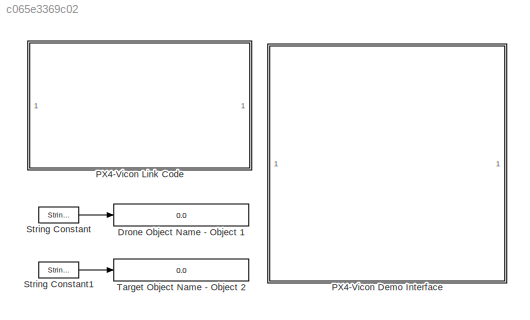
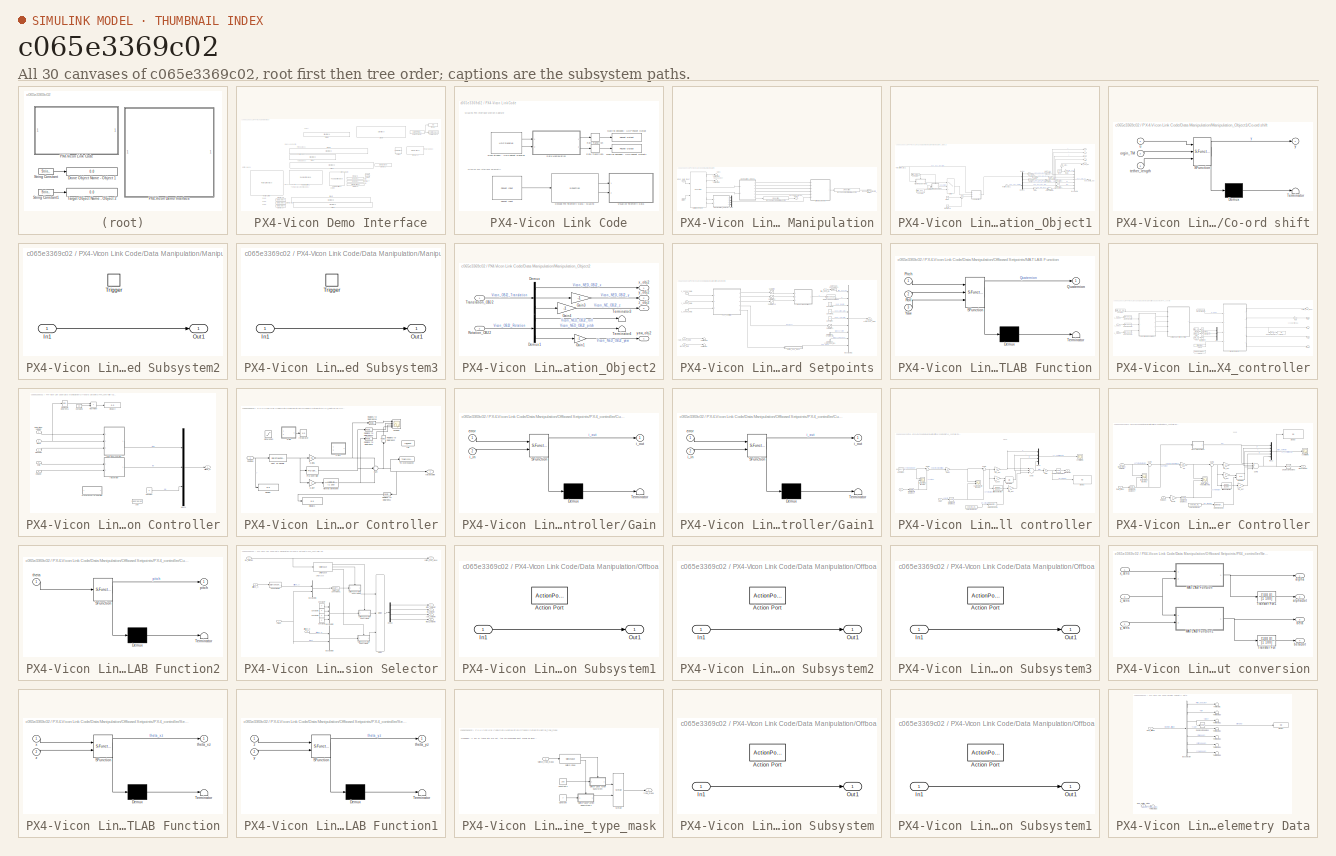
[diagram: thumbnail index - all 30 canvases of the model, root first then tree order]
MODEL slx_c065e3369c02
KIND model
CONFIG AbsTol = auto
CONFIG EnableMultiTasking = off
CONFIG FixedStep = 1/1000
CONFIG InitFcn = x_setpoint_NED = 0;\ny_setpoint_NED = 0;\nz_setpoint_NED = 0;\nvx_setpoint_NED = 0;\nvy_setpoint_NED = 0;\nvz_setpoint_NED = 0;\nafx_setpoint_NED = 0;\nafy_setpoint_NED = 0;\nafz_setpoint_NED = 0;\nyaw_setpoint_NED = 0;\nyawrate_setpoint_NED = 0;\nselected_mission = 1;\npitch_ol = 0;\nroll_ol = 0;\nyaw_ol = 0;\ntheta_xz_setpoint = 0;\nthrustVal = 0;\nparentThruster = 0;\n\nreturn_com = 0;\ntakeoff_com = 0;\nmission_co...<+71ch>
CONFIG MaxStep = auto
CONFIG MinStep = auto
CONFIG PreLoadFcn = x_setpoint_NED = 0;\ny_setpoint_NED = 0;\nz_setpoint_NED = 0;\nvx_setpoint_NED = 0;\nvy_setpoint_NED = 0;\nvz_setpoint_NED = 0;\nafx_setpoint_NED = 0;\nafy_setpoint_NED = 0;\nafz_setpoint_NED = 0;\nyaw_setpoint_NED = 0;\nyawrate_setpoint_NED = 0;\nselected_mission = 1;\npitch_ol = 0;\nroll_ol = 0;\nyaw_ol = 0;\ntheta_xz_setpoint = 0;\nthrustVal = 0;\nparentThruster = 0;\n\nreturn_com = 0;\ntakeoff_com = 0;\nmission_co...<+70ch>
CONFIG RelTol = 1e-3
CONFIG SampleTimeConstraint = Unconstrained
CONFIG Solver = ode1
CONFIG SolverName = ode1
CONFIG StartFcn = yaw_ol = 0;
CONFIG StartTime = 0.0
CONFIG StopTime = inf
BLOCK [Display] Drone Object Name - Object 1
  Decimation = 1
  Ports = [1]
BLOCK [SubSystem] PX4-Vicon Demo Interface
  Ports = []
  RequestExecContextInheritance = off
BLOCK [Display] PX4-Vicon Demo Interface/Display
  Decimation = 1
  Ports = [1]
BLOCK [DisplayBlock] PX4-Vicon Demo Interface/Display1
  Format = short
  LabelPosition = Hide
BLOCK [DisplayBlock] PX4-Vicon Demo Interface/Display10
  Format = short
  LabelPosition = Hide
BLOCK [DisplayBlock] PX4-Vicon Demo Interface/Display35
  Commented = on
  Format = short
  LabelPosition = Hide
BLOCK [DisplayBlock] PX4-Vicon Demo Interface/Display36
  Commented = on
  Format = short
  LabelPosition = Hide
BLOCK [DisplayBlock] PX4-Vicon Demo Interface/Display37
  Commented = on
  Format = short
  LabelPosition = Hide
BLOCK [DisplayBlock] PX4-Vicon Demo Interface/Display6
  Format = short
  LabelPosition = Hide
BLOCK [DisplayBlock] PX4-Vicon Demo Interface/Display7
  Format = short
  LabelPosition = Hide
BLOCK [DisplayBlock] PX4-Vicon Demo Interface/Display8
  Format = short
  LabelPosition = Hide
BLOCK [LampBlock] PX4-Vicon Demo Interface/Lamp5
BLOCK [LampBlock] PX4-Vicon Demo Interface/Lamp6
  LabelPosition = Hide
BLOCK [RadioButtonGroup] PX4-Vicon Demo Interface/Radio Button1
  ButtonGroupName = Select Desired Control
  LabelPosition = Hide
  SelectedLabel = DONT
BLOCK [RotarySwitchBlock] PX4-Vicon Demo Interface/Rotary Switch
  LabelPosition = Hide
BLOCK [SliderBlock] PX4-Vicon Demo Interface/Slider
  LabelPosition = Hide
  ScaleMax = 25
  ScaleMin = -25
BLOCK [SliderBlock] PX4-Vicon Demo Interface/Slider1
  LabelPosition = Hide
  ScaleMax = 180
  ScaleMin = -180
  TickInterval = 10
BLOCK [SliderBlock] PX4-Vicon Demo Interface/Slider2
  LabelPosition = Hide
  ScaleMax = 60
  ScaleMin = -30
BLOCK [SliderBlock] PX4-Vicon Demo Interface/Slider3
  LabelPosition = Hide
  ScaleMax = 60
  ScaleMin = -25
  TickInterval = 5
BLOCK [SliderBlock] PX4-Vicon Demo Interface/Slider4
  LabelPosition = Hide
  ScaleMax = 0.5
  TickInterval = 0.050000000000000003
BLOCK [SliderBlock] PX4-Vicon Demo Interface/Slider5
  ScaleMax = 60
  TickInterval = 5
BLOCK [SliderBlock] PX4-Vicon Demo Interface/Slider6
  LabelPosition = Hide
  ScaleMax = 30
  ScaleMin = -30
BLOCK [ToWorkspace] PX4-Vicon Demo Interface/To Workspace
  FixptAsFi = on
  MaxDataPoints = inf
  Ports = [1]
  SampleTime = -1
  SaveFormat = Timeseries
  VariableName = parentThruster
BLOCK [ToggleSwitchBlock] PX4-Vicon Demo Interface/Toggle Switch1
  LabelPosition = Hide
BLOCK [Constant] PX4-Vicon Demo Interface/parentThruster
  Value = parentThruster
BLOCK [SubSystem] PX4-Vicon Link Code
  Ports = []
  RequestExecContextInheritance = off
BLOCK [SubSystem] PX4-Vicon Link Code/Data Manipulation
  Ports = [2, 2]
  RequestExecContextInheritance = off
BLOCK [S-Function] PX4-Vicon Link Code/Data Manipulation/Encode Mocap Data - MAVLink 
  EnableBusSupport = off
  FunctionName = sfun_encode_msg_vision_position_estimate
  Ports = [1, 1]
  SFcnIsStateOwnerBlock = off
  SFunctionDeploymentMode = off
BLOCK [S-Function] PX4-Vicon Link Code/Data Manipulation/Encode Setpoint Data - MAVLink
  EnableBusSupport = off
  FunctionName = sfun_encode_msg_set_attitude_target
  Ports = [1, 1]
  SFcnIsStateOwnerBlock = off
  SFunctionDeploymentMode = off
BLOCK [Outport] PX4-Vicon Link Code/Data Manipulation/Encoded_Mocap_Output
  IconDisplay = Port number
  Port = 2
BLOCK [Outport] PX4-Vicon Link Code/Data Manipulation/Encoded_Setpoints_Output
  IconDisplay = Port number
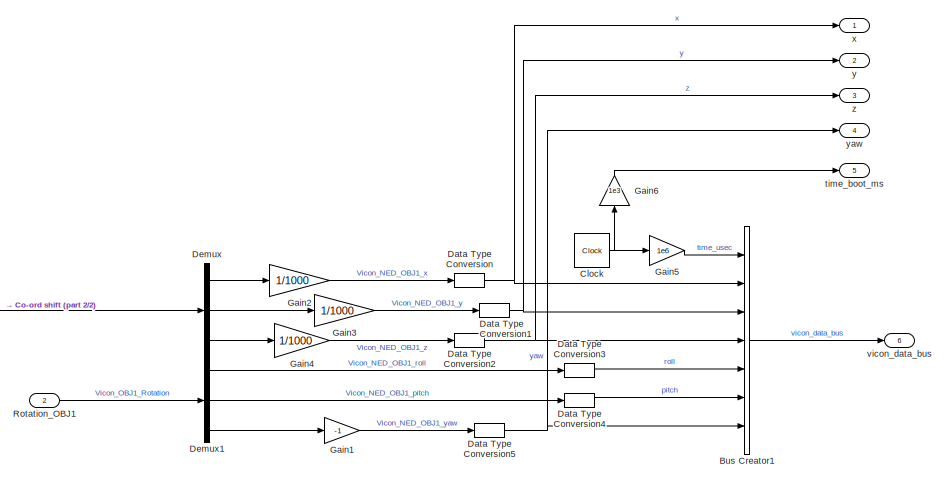
[diagram: PX4-Vicon Link Code/Data Manipulation/Manipulation_Object1 - part 1/2, middle right region]
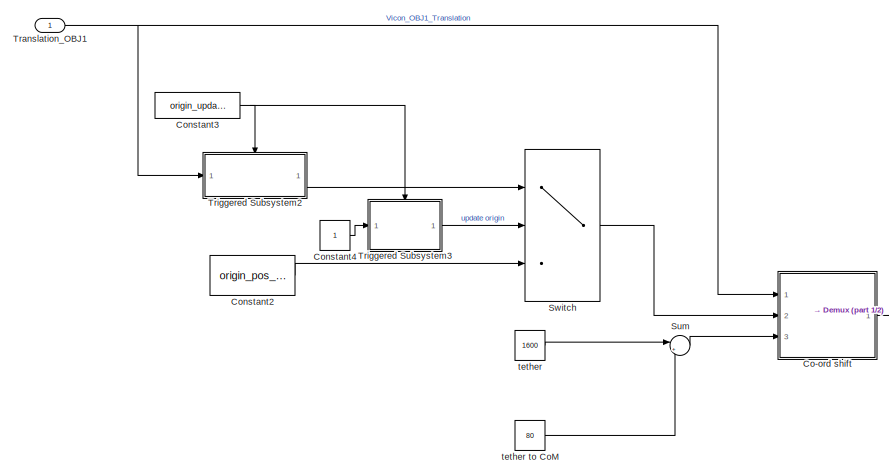
[diagram: PX4-Vicon Link Code/Data Manipulation/Manipulation_Object1 - part 2/2, middle left region]
BLOCK [SubSystem] PX4-Vicon Link Code/Data Manipulation/Manipulation_Object1
  Ports = [2, 6]
  RequestExecContextInheritance = off
BLOCK [BusCreator] PX4-Vicon Link Code/Data Manipulation/Manipulation_Object1/Bus Creator1
  DisplayOption = bar
  InheritFromInputs = on
  Inputs = time_usec,x,y,z,roll,pitch,yaw
  OutDataTypeStr = Bus: mavlink_vision_position_estimate_t
  Ports = [7, 1]
BLOCK [Clock] PX4-Vicon Link Code/Data Manipulation/Manipulation_Object1/Clock
  Decimation = 100
  DisplayTime = on
BLOCK [SubSystem] PX4-Vicon Link Code/Data Manipulation/Manipulation_Object1/Co-ord shift
  ErrorFcn = Stateflow.Translate.translate
  PermitHierarchicalResolution = ExplicitOnly
  Ports = [3, 1]
  RequestExecContextInheritance = off
  SFBlockType = MATLAB Function
  TreatAsAtomicUnit = on
BLOCK [Demux] PX4-Vicon Link Code/Data Manipulation/Manipulation_Object1/Co-ord shift/ Demux 
  Outputs = 1
  Ports = [1, 1]
BLOCK [S-Function] PX4-Vicon Link Code/Data Manipulation/Manipulation_Object1/Co-ord shift/ SFunction 
  EnableBusSupport = on
  FunctionName = sf_sfun
  PortCounts = [3 2]
  Ports = [3, 2]
  SFcnIsStateOwnerBlock = off
  SFunctionDeploymentMode = off
  Tag = Stateflow S-Function attitude_template_link 2
BLOCK [Terminator] PX4-Vicon Link Code/Data Manipulation/Manipulation_Object1/Co-ord shift/ Terminator 
BLOCK [Inport] PX4-Vicon Link Code/Data Manipulation/Manipulation_Object1/Co-ord shift/orgin_TM
  IconDisplay = Port number
  Port = 2
BLOCK [Inport] PX4-Vicon Link Code/Data Manipulation/Manipulation_Object1/Co-ord shift/tether_length
  IconDisplay = Port number
  Port = 3
BLOCK [Inport] PX4-Vicon Link Code/Data Manipulation/Manipulation_Object1/Co-ord shift/u
  IconDisplay = Port number
BLOCK [Outport] PX4-Vicon Link Code/Data Manipulation/Manipulation_Object1/Co-ord shift/y
  IconDisplay = Port number
BLOCK [Constant] PX4-Vicon Link Code/Data Manipulation/Manipulation_Object1/Constant2
  Value = origin_pos_yaw
BLOCK [Constant] PX4-Vicon Link Code/Data Manipulation/Manipulation_Object1/Constant3
  Value = origin_update
BLOCK [Constant] PX4-Vicon Link Code/Data Manipulation/Manipulation_Object1/Constant4
BLOCK [DataTypeConversion] PX4-Vicon Link Code/Data Manipulation/Manipulation_Object1/Data Type Conversion
  OutDataTypeStr = single
  RndMeth = Floor
  SaturateOnIntegerOverflow = off
BLOCK [DataTypeConversion] PX4-Vicon Link Code/Data Manipulation/Manipulation_Object1/Data Type Conversion1
  OutDataTypeStr = single
  RndMeth = Floor
  SaturateOnIntegerOverflow = off
BLOCK [DataTypeConversion] PX4-Vicon Link Code/Data Manipulation/Manipulation_Object1/Data Type Conversion2
  OutDataTypeStr = single
  RndMeth = Floor
  SaturateOnIntegerOverflow = off
BLOCK [DataTypeConversion] PX4-Vicon Link Code/Data Manipulation/Manipulation_Object1/Data Type Conversion3
  OutDataTypeStr = single
  RndMeth = Floor
  SaturateOnIntegerOverflow = off
BLOCK [DataTypeConversion] PX4-Vicon Link Code/Data Manipulation/Manipulation_Object1/Data Type Conversion4
  OutDataTypeStr = single
  RndMeth = Floor
  SaturateOnIntegerOverflow = off
BLOCK [DataTypeConversion] PX4-Vicon Link Code/Data Manipulation/Manipulation_Object1/Data Type Conversion5
  OutDataTypeStr = single
  RndMeth = Floor
  SaturateOnIntegerOverflow = off
BLOCK [Demux] PX4-Vicon Link Code/Data Manipulation/Manipulation_Object1/Demux
  DisplayOption = bar
  Outputs = 3
  Ports = [1, 3]
BLOCK [Demux] PX4-Vicon Link Code/Data Manipulation/Manipulation_Object1/Demux1
  DisplayOption = bar
  Outputs = 3
  Ports = [1, 3]
BLOCK [Gain] PX4-Vicon Link Code/Data Manipulation/Manipulation_Object1/Gain1
  Gain = -1
  ParamDataTypeStr = Inherit: Inherit via internal rule
  SaturateOnIntegerOverflow = off
BLOCK [Gain] PX4-Vicon Link Code/Data Manipulation/Manipulation_Object1/Gain2
  Gain = 1/1000
  OutDataTypeStr = double
  ParamDataTypeStr = Inherit: Inherit via internal rule
  SaturateOnIntegerOverflow = off
BLOCK [Gain] PX4-Vicon Link Code/Data Manipulation/Manipulation_Object1/Gain3
  Gain = 1/1000
  OutDataTypeStr = double
  ParamDataTypeStr = Inherit: Inherit via internal rule
  SaturateOnIntegerOverflow = off
BLOCK [Gain] PX4-Vicon Link Code/Data Manipulation/Manipulation_Object1/Gain4
  Gain = 1/1000
  OutDataTypeStr = double
  ParamDataTypeStr = Inherit: Inherit via internal rule
  SaturateOnIntegerOverflow = off
BLOCK [Gain] PX4-Vicon Link Code/Data Manipulation/Manipulation_Object1/Gain5
  Gain = 1e6
  OutDataTypeStr = double
  ParamDataTypeStr = Inherit: Inherit via internal rule
  SaturateOnIntegerOverflow = off
BLOCK [Gain] PX4-Vicon Link Code/Data Manipulation/Manipulation_Object1/Gain6
  Gain = 1e3
  OutDataTypeStr = double
  ParamDataTypeStr = Inherit: Inherit via internal rule
  SaturateOnIntegerOverflow = off
BLOCK [Inport] PX4-Vicon Link Code/Data Manipulation/Manipulation_Object1/Rotation_OBJ1
  IconDisplay = Port number
  Port = 2
BLOCK [Sum] PX4-Vicon Link Code/Data Manipulation/Manipulation_Object1/Sum
  IconShape = round
  InputSameDT = off
  Inputs = |++
  OutDataTypeStr = Inherit: Inherit via internal rule
  Ports = [2, 1]
  SaturateOnIntegerOverflow = off
BLOCK [Switch] PX4-Vicon Link Code/Data Manipulation/Manipulation_Object1/Switch
  Criteria = u2 > Threshold
  InputSameDT = off
  SaturateOnIntegerOverflow = off
BLOCK [Inport] PX4-Vicon Link Code/Data Manipulation/Manipulation_Object1/Translation_OBJ1
  IconDisplay = Port number
BLOCK [SubSystem] PX4-Vicon Link Code/Data Manipulation/Manipulation_Object1/Triggered Subsystem2
  Ports = [1, 1, 0, 1]
  RequestExecContextInheritance = off
  TreatAsAtomicUnit = on
BLOCK [Inport] PX4-Vicon Link Code/Data Manipulation/Manipulation_Object1/Triggered Subsystem2/In1
  IconDisplay = Port number
BLOCK [Outport] PX4-Vicon Link Code/Data Manipulation/Manipulation_Object1/Triggered Subsystem2/Out1
  IconDisplay = Port number
  VectorParamsAs1DForOutWhenUnconnected = on
BLOCK [TriggerPort] PX4-Vicon Link Code/Data Manipulation/Manipulation_Object1/Triggered Subsystem2/Trigger
  InitialTriggerSignalState = zero
  Ports = []
  StatesWhenEnabling = held
  VariantControl = Variant
BLOCK [SubSystem] PX4-Vicon Link Code/Data Manipulation/Manipulation_Object1/Triggered Subsystem3
  Ports = [1, 1, 0, 1]
  RequestExecContextInheritance = off
  TreatAsAtomicUnit = on
BLOCK [Inport] PX4-Vicon Link Code/Data Manipulation/Manipulation_Object1/Triggered Subsystem3/In1
  IconDisplay = Port number
BLOCK [Outport] PX4-Vicon Link Code/Data Manipulation/Manipulation_Object1/Triggered Subsystem3/Out1
  IconDisplay = Port number
  VectorParamsAs1DForOutWhenUnconnected = on
BLOCK [TriggerPort] PX4-Vicon Link Code/Data Manipulation/Manipulation_Object1/Triggered Subsystem3/Trigger
  InitialTriggerSignalState = zero
  Ports = []
  StatesWhenEnabling = held
  VariantControl = Variant
BLOCK [Constant] PX4-Vicon Link Code/Data Manipulation/Manipulation_Object1/tether
  Value = 1600
BLOCK [Constant] PX4-Vicon Link Code/Data Manipulation/Manipulation_Object1/tether to CoM
  Value = 80
BLOCK [Outport] PX4-Vicon Link Code/Data Manipulation/Manipulation_Object1/time_boot_ms
  IconDisplay = Port number
  Port = 5
BLOCK [Outport] PX4-Vicon Link Code/Data Manipulation/Manipulation_Object1/vicon_data_bus
  IconDisplay = Port number
  Port = 6
BLOCK [Outport] PX4-Vicon Link Code/Data Manipulation/Manipulation_Object1/x
  IconDisplay = Port number
BLOCK [Outport] PX4-Vicon Link Code/Data Manipulation/Manipulation_Object1/y
  IconDisplay = Port number
  Port = 2
BLOCK [Outport] PX4-Vicon Link Code/Data Manipulation/Manipulation_Object1/yaw
  IconDisplay = Port number
  Port = 4
BLOCK [Outport] PX4-Vicon Link Code/Data Manipulation/Manipulation_Object1/z
  IconDisplay = Port number
  Port = 3
BLOCK [SubSystem] PX4-Vicon Link Code/Data Manipulation/Manipulation_Object2
  Commented = on
  Ports = [2, 4]
  RequestExecContextInheritance = off
BLOCK [Demux] PX4-Vicon Link Code/Data Manipulation/Manipulation_Object2/Demux
  DisplayOption = bar
  Outputs = 3
  Ports = [1, 3]
BLOCK [Demux] PX4-Vicon Link Code/Data Manipulation/Manipulation_Object2/Demux1
  DisplayOption = bar
  Outputs = 3
  Ports = [1, 3]
BLOCK [Gain] PX4-Vicon Link Code/Data Manipulation/Manipulation_Object2/Gain1
  Gain = -1
  ParamDataTypeStr = Inherit: Inherit via internal rule
  SaturateOnIntegerOverflow = off
BLOCK [Gain] PX4-Vicon Link Code/Data Manipulation/Manipulation_Object2/Gain3
  Gain = -1
  OutDataTypeStr = double
  ParamDataTypeStr = Inherit: Inherit via internal rule
  SaturateOnIntegerOverflow = off
BLOCK [Gain] PX4-Vicon Link Code/Data Manipulation/Manipulation_Object2/Gain4
  Gain = -1
  OutDataTypeStr = double
  ParamDataTypeStr = Inherit: Inherit via internal rule
  SaturateOnIntegerOverflow = off
BLOCK [Inport] PX4-Vicon Link Code/Data Manipulation/Manipulation_Object2/Rotation_OBJ2
  IconDisplay = Port number
  Port = 2
BLOCK [Terminator] PX4-Vicon Link Code/Data Manipulation/Manipulation_Object2/Terminator3
BLOCK [Terminator] PX4-Vicon Link Code/Data Manipulation/Manipulation_Object2/Terminator4
BLOCK [Inport] PX4-Vicon Link Code/Data Manipulation/Manipulation_Object2/Translation_OBJ2
  IconDisplay = Port number
BLOCK [Outport] PX4-Vicon Link Code/Data Manipulation/Manipulation_Object2/x_obj2
  IconDisplay = Port number
  VectorParamsAs1DForOutWhenUnconnected = on
BLOCK [Outport] PX4-Vicon Link Code/Data Manipulation/Manipulation_Object2/y_obj2
  IconDisplay = Port number
  Port = 2
  VectorParamsAs1DForOutWhenUnconnected = on
BLOCK [Outport] PX4-Vicon Link Code/Data Manipulation/Manipulation_Object2/yaw_obj2
  IconDisplay = Port number
  Port = 4
  VectorParamsAs1DForOutWhenUnconnected = on
BLOCK [Outport] PX4-Vicon Link Code/Data Manipulation/Manipulation_Object2/z_obj2
  IconDisplay = Port number
  Port = 3
  VectorParamsAs1DForOutWhenUnconnected = on
BLOCK [S-Function] PX4-Vicon Link Code/Data Manipulation/MultiObjectParser
  AttributesFormatString = Data_Parser_Multi
  EnableBusSupport = off
  FunctionName = TrackerMultiObjectParser
  Parameters = Object1,Object2
  Ports = [2, 6]
  SFcnIsStateOwnerBlock = off
  SFunctionDeploymentMode = off
  SFunctionModules = TrackerMultiObjectParser
  Tag = Data_Parser_Multi
BLOCK [Mux] PX4-Vicon Link Code/Data Manipulation/Mux
  Commented = on
  DisplayOption = bar
  Ports = [4, 1]
BLOCK [SubSystem] PX4-Vicon Link Code/Data Manipulation/Offboard Setpoints
  Ports = [6, 1]
  RequestExecContextInheritance = off
BLOCK [Constant] PX4-Vicon Link Code/Data Manipulation/Offboard Setpoints/(uint8) target_component_id1
  OutDataTypeStr = uint8
BLOCK [Constant] PX4-Vicon Link Code/Data Manipulation/Offboard Setpoints/(uint8) target_system_id1
  OutDataTypeStr = uint8
BLOCK [Outport] PX4-Vicon Link Code/Data Manipulation/Offboard Setpoints/ATTITUDE_TARGET_LOCAL_NED
  IconDisplay = Port number
BLOCK [BusCreator] PX4-Vicon Link Code/Data Manipulation/Offboard Setpoints/Bus Creator1
  DisplayOption = bar
  InheritFromInputs = on
  Inputs = 9
  OutDataTypeStr = Bus: mavlink_set_attitude_target_t
  Ports = [9, 1]
BLOCK [Constant] PX4-Vicon Link Code/Data Manipulation/Offboard Setpoints/Constant
  OutDataTypeStr = single
  Value = 0
BLOCK [Constant] PX4-Vicon Link Code/Data Manipulation/Offboard Setpoints/Constant1
  OutDataTypeStr = single
  Value = 0
BLOCK [Constant] PX4-Vicon Link Code/Data Manipulation/Offboard Setpoints/Constant2
  OutDataTypeStr = single
  Value = 0
BLOCK [DataTypeConversion] PX4-Vicon Link Code/Data Manipulation/Offboard Setpoints/Data Type Conversion1
  OutDataTypeStr = uint32
  RndMeth = Floor
  SaturateOnIntegerOverflow = off
BLOCK [DataTypeConversion] PX4-Vicon Link Code/Data Manipulation/Offboard Setpoints/Data Type Conversion2
  OutDataTypeStr = single
  RndMeth = Floor
  SaturateOnIntegerOverflow = off
BLOCK [SubSystem] PX4-Vicon Link Code/Data Manipulation/Offboard Setpoints/MATLAB Function
  ErrorFcn = Stateflow.Translate.translate
  PermitHierarchicalResolution = ExplicitOnly
  Ports = [3, 1]
  RequestExecContextInheritance = off
  SFBlockType = MATLAB Function
  TreatAsAtomicUnit = on
BLOCK [Demux] PX4-Vicon Link Code/Data Manipulation/Offboard Setpoints/MATLAB Function/ Demux 
  Outputs = 1
  Ports = [1, 1]
BLOCK [S-Function] PX4-Vicon Link Code/Data Manipulation/Offboard Setpoints/MATLAB Function/ SFunction 
  EnableBusSupport = on
  FunctionName = sf_sfun
  PortCounts = [3 2]
  Ports = [3, 2]
  SFcnIsStateOwnerBlock = off
  SFunctionDeploymentMode = off
  Tag = Stateflow S-Function attitude_template_link 7
BLOCK [Terminator] PX4-Vicon Link Code/Data Manipulation/Offboard Setpoints/MATLAB Function/ Terminator 
BLOCK [Inport] PX4-Vicon Link Code/Data Manipulation/Offboard Setpoints/MATLAB Function/Pitch
  IconDisplay = Port number
BLOCK [Outport] PX4-Vicon Link Code/Data Manipulation/Offboard Setpoints/MATLAB Function/Quaternion
  IconDisplay = Port number
BLOCK [Inport] PX4-Vicon Link Code/Data Manipulation/Offboard Setpoints/MATLAB Function/Roll
  IconDisplay = Port number
  Port = 2
BLOCK [Inport] PX4-Vicon Link Code/Data Manipulation/Offboard Setpoints/MATLAB Function/Yaw
  IconDisplay = Port number
  Port = 3
BLOCK [Inport] PX4-Vicon Link Code/Data Manipulation/Offboard Setpoints/Mocap_Obj2
  IconDisplay = Port number
  Port = 6
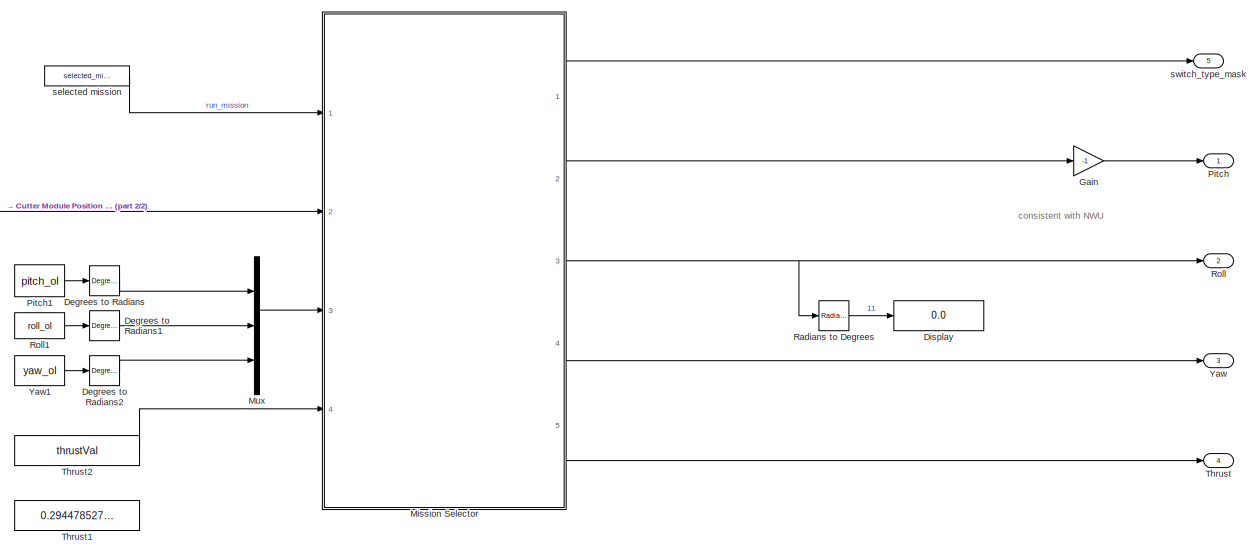
[diagram: PX4-Vicon Link Code/Data Manipulation/Offboard Setpoints/PX4_controller - part 1/2, right side, full height]
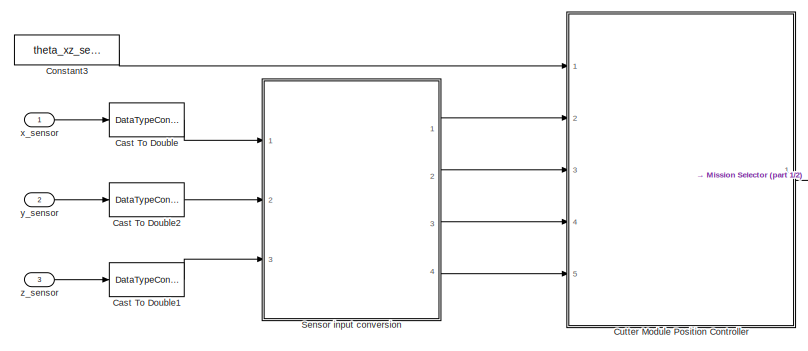
[diagram: PX4-Vicon Link Code/Data Manipulation/Offboard Setpoints/PX4_controller - part 2/2, middle left region]
BLOCK [SubSystem] PX4-Vicon Link Code/Data Manipulation/Offboard Setpoints/PX4_controller
  Ports = [3, 5]
  RequestExecContextInheritance = off
BLOCK [DataTypeConversion] PX4-Vicon Link Code/Data Manipulation/Offboard Setpoints/PX4_controller/Cast To Double
  OutDataTypeStr = double
  RndMeth = Floor
  SaturateOnIntegerOverflow = off
BLOCK [DataTypeConversion] PX4-Vicon Link Code/Data Manipulation/Offboard Setpoints/PX4_controller/Cast To Double1
  OutDataTypeStr = double
  RndMeth = Floor
  SaturateOnIntegerOverflow = off
BLOCK [DataTypeConversion] PX4-Vicon Link Code/Data Manipulation/Offboard Setpoints/PX4_controller/Cast To Double2
  OutDataTypeStr = double
  RndMeth = Floor
  SaturateOnIntegerOverflow = off
BLOCK [Constant] PX4-Vicon Link Code/Data Manipulation/Offboard Setpoints/PX4_controller/Constant3
  Value = theta_xz_setpoint
BLOCK [SubSystem] PX4-Vicon Link Code/Data Manipulation/Offboard Setpoints/PX4_controller/Cutter Module Position Controller
  Ports = [5, 1]
  RequestExecContextInheritance = off
BLOCK [Constant] PX4-Vicon Link Code/Data Manipulation/Offboard Setpoints/PX4_controller/Cutter Module Position Controller/Constant
  Value = 0
BLOCK [Constant] PX4-Vicon Link Code/Data Manipulation/Offboard Setpoints/PX4_controller/Cutter Module Position Controller/Constant1
  Value = 30
BLOCK [SubSystem] PX4-Vicon Link Code/Data Manipulation/Offboard Setpoints/PX4_controller/Cutter Module Position Controller/Crosstrack error Controller
  Commented = on
  Ports = [1, 1]
  RequestExecContextInheritance = off
BLOCK [DataTypeConversion] PX4-Vicon Link Code/Data Manipulation/Offboard Setpoints/PX4_controller/Cutter Module Position Controller/Crosstrack error Controller/Cast To Double
  OutDataTypeStr = double
  RndMeth = Floor
  SaturateOnIntegerOverflow = off
BLOCK [Display] PX4-Vicon Link Code/Data Manipulation/Offboard Setpoints/PX4_controller/Cutter Module Position Controller/Crosstrack error Controller/Display
  Decimation = 1
  Ports = [1]
BLOCK [Display] PX4-Vicon Link Code/Data Manipulation/Offboard Setpoints/PX4_controller/Cutter Module Position Controller/Crosstrack error Controller/Display1
  Decimation = 1
  Ports = [1]
BLOCK [SubSystem] PX4-Vicon Link Code/Data Manipulation/Offboard Setpoints/PX4_controller/Cutter Module Position Controller/Crosstrack error Controller/Gain
  Commented = on
  ErrorFcn = Stateflow.Translate.translate
  PermitHierarchicalResolution = ExplicitOnly
  Ports = [2, 1]
  RequestExecContextInheritance = off
  SFBlockType = MATLAB Function
  TreatAsAtomicUnit = on
BLOCK [Demux] PX4-Vicon Link Code/Data Manipulation/Offboard Setpoints/PX4_controller/Cutter Module Position Controller/Crosstrack error Controller/Gain/ Demux 
  Outputs = 1
  Ports = [1, 1]
BLOCK [S-Function] PX4-Vicon Link Code/Data Manipulation/Offboard Setpoints/PX4_controller/Cutter Module Position Controller/Crosstrack error Controller/Gain/ SFunction 
  EnableBusSupport = on
  FunctionName = sf_sfun
  PortCounts = [2 2]
  Ports = [2, 2]
  SFcnIsStateOwnerBlock = off
  SFunctionDeploymentMode = off
  Tag = Stateflow S-Function attitude_template_link 3
BLOCK [Terminator] PX4-Vicon Link Code/Data Manipulation/Offboard Setpoints/PX4_controller/Cutter Module Position Controller/Crosstrack error Controller/Gain/ Terminator 
BLOCK [Inport] PX4-Vicon Link Code/Data Manipulation/Offboard Setpoints/PX4_controller/Cutter Module Position Controller/Crosstrack error Controller/Gain/error
  IconDisplay = Port number
BLOCK [Inport] PX4-Vicon Link Code/Data Manipulation/Offboard Setpoints/PX4_controller/Cutter Module Position Controller/Crosstrack error Controller/Gain/i_in
  IconDisplay = Port number
  Port = 2
BLOCK [Outport] PX4-Vicon Link Code/Data Manipulation/Offboard Setpoints/PX4_controller/Cutter Module Position Controller/Crosstrack error Controller/Gain/i_out
  IconDisplay = Port number
BLOCK [SubSystem] PX4-Vicon Link Code/Data Manipulation/Offboard Setpoints/PX4_controller/Cutter Module Position Controller/Crosstrack error Controller/Gain1
  ErrorFcn = Stateflow.Translate.translate
  PermitHierarchicalResolution = ExplicitOnly
  Ports = [2, 1]
  RequestExecContextInheritance = off
  SFBlockType = MATLAB Function
  TreatAsAtomicUnit = on
BLOCK [Demux] PX4-Vicon Link Code/Data Manipulation/Offboard Setpoints/PX4_controller/Cutter Module Position Controller/Crosstrack error Controller/Gain1/ Demux 
  Outputs = 1
  Ports = [1, 1]
BLOCK [S-Function] PX4-Vicon Link Code/Data Manipulation/Offboard Setpoints/PX4_controller/Cutter Module Position Controller/Crosstrack error Controller/Gain1/ SFunction 
  EnableBusSupport = on
  FunctionName = sf_sfun
  PortCounts = [2 2]
  Ports = [2, 2]
  SFcnIsStateOwnerBlock = off
  SFunctionDeploymentMode = off
  Tag = Stateflow S-Function attitude_template_link 5
BLOCK [Terminator] PX4-Vicon Link Code/Data Manipulation/Offboard Setpoints/PX4_controller/Cutter Module Position Controller/Crosstrack error Controller/Gain1/ Terminator 
BLOCK [Inport] PX4-Vicon Link Code/Data Manipulation/Offboard Setpoints/PX4_controller/Cutter Module Position Controller/Crosstrack error Controller/Gain1/error
  IconDisplay = Port number
BLOCK [Inport] PX4-Vicon Link Code/Data Manipulation/Offboard Setpoints/PX4_controller/Cutter Module Position Controller/Crosstrack error Controller/Gain1/i_in
  IconDisplay = Port number
  Port = 2
BLOCK [Outport] PX4-Vicon Link Code/Data Manipulation/Offboard Setpoints/PX4_controller/Cutter Module Position Controller/Crosstrack error Controller/Gain1/i_out
  IconDisplay = Port number
BLOCK [Gain] PX4-Vicon Link Code/Data Manipulation/Offboard Setpoints/PX4_controller/Cutter Module Position Controller/Crosstrack error Controller/Gain6
  Gain = 0.5
  OutDataTypeStr = Inherit: Inherit via internal rule
  ParamDataTypeStr = Inherit: Inherit via internal rule
  SaturateOnIntegerOverflow = off
BLOCK [Gain] PX4-Vicon Link Code/Data Manipulation/Offboard Setpoints/PX4_controller/Cutter Module Position Controller/Crosstrack error Controller/Gain7
  Gain = 0
  OutDataTypeStr = Inherit: Inherit via internal rule
  ParamDataTypeStr = Inherit: Inherit via internal rule
  SaturateOnIntegerOverflow = off
BLOCK [Integrator] PX4-Vicon Link Code/Data Manipulation/Offboard Setpoints/PX4_controller/Cutter Module Position Controller/Crosstrack error Controller/Integrator
  Commented = on
  LowerSaturationLimit = deg2rad(-15)
  Ports = [1, 1]
  UpperSaturationLimit = deg2rad(15)
BLOCK [Reference] PX4-Vicon Link Code/Data Manipulation/Offboard Setpoints/PX4_controller/Cutter Module Position Controller/Crosstrack error Controller/PID Controller  REF=simulink/Continuous/PID Controller
  Ports = [1, 1]
  SourceBlock = simulink/Continuous/PID Controller
  SourceProductBaseCode = SL
  SourceProductName = Simulink
  SourceType = PID 1dof
BLOCK [Inport] PX4-Vicon Link Code/Data Manipulation/Offboard Setpoints/PX4_controller/Cutter Module Position Controller/Crosstrack error Controller/Position
  IconDisplay = Port number
BLOCK [Reference] PX4-Vicon Link Code/Data Manipulation/Offboard Setpoints/PX4_controller/Cutter Module Position Controller/Crosstrack error Controller/Radians to Degrees1  REF=simulink_extras/Transformations/Radians
to Degrees
  Ports = [1, 1]
  SourceBlock = simulink_extras/Transformations/Radians\nto Degrees
  SourceProductBaseCode = SL
  SourceType = RadiansToDegrees
BLOCK [Reference] PX4-Vicon Link Code/Data Manipulation/Offboard Setpoints/PX4_controller/Cutter Module Position Controller/Crosstrack error Controller/Radians to Degrees10  REF=simulink_extras/Transformations/Radians
to Degrees
  Ports = [1, 1]
  SourceBlock = simulink_extras/Transformations/Radians\nto Degrees
  SourceProductBaseCode = SL
  SourceType = RadiansToDegrees
BLOCK [Reference] PX4-Vicon Link Code/Data Manipulation/Offboard Setpoints/PX4_controller/Cutter Module Position Controller/Crosstrack error Controller/Radians to Degrees11  REF=simulink_extras/Transformations/Radians
to Degrees
  Ports = [1, 1]
  SourceBlock = simulink_extras/Transformations/Radians\nto Degrees
  SourceProductBaseCode = SL
  SourceType = RadiansToDegrees
BLOCK [Reference] PX4-Vicon Link Code/Data Manipulation/Offboard Setpoints/PX4_controller/Cutter Module Position Controller/Crosstrack error Controller/Radians to Degrees2  REF=simulink_extras/Transformations/Radians
to Degrees
  Ports = [1, 1]
  SourceBlock = simulink_extras/Transformations/Radians\nto Degrees
  SourceProductBaseCode = SL
  SourceType = RadiansToDegrees
BLOCK [Reference] PX4-Vicon Link Code/Data Manipulation/Offboard Setpoints/PX4_controller/Cutter Module Position Controller/Crosstrack error Controller/Radians to Degrees9  REF=simulink_extras/Transformations/Radians
to Degrees
  Ports = [1, 1]
  SourceBlock = simulink_extras/Transformations/Radians\nto Degrees
  SourceProductBaseCode = SL
  SourceType = RadiansToDegrees
BLOCK [Saturate] PX4-Vicon Link Code/Data Manipulation/Offboard Setpoints/PX4_controller/Cutter Module Position Controller/Crosstrack error Controller/Saturation
  Commented = on
  InputPortMap = u0
  LowerLimit = deg2rad(-15)
  Ports = [1, 1]
  UpperLimit = deg2rad(15)
BLOCK [Scope] PX4-Vicon Link Code/Data Manipulation/Offboard Setpoints/PX4_controller/Cutter Module Position Controller/Crosstrack error Controller/Scope6
  Floating = off
  NumInputPorts = 4
  Ports = [4]
  ScopeSpecificationString = Simulink.scopes.TimeScopeBlockCfg('CurrentConfiguration', extmgr.ConfigurationSet(extmgr.Configuration('Core','General UI',true),extmgr.Configuration('Core','Source UI',true),extmgr.Configuration('Sources','WiredSimulink',true,'DataLoggingVariableName','ScopeData1'),extmgr.Configuration('Visuals','Time Domain',true,'SerializedDisplays',{struct('MinYLimReal','-3.36061','MaxYLimReal','1.18228','YLab...<+1565ch>
BLOCK [Sum] PX4-Vicon Link Code/Data Manipulation/Offboard Setpoints/PX4_controller/Cutter Module Position Controller/Crosstrack error Controller/Sum
  IconShape = round
  InputSameDT = off
  Inputs = +++
  OutDataTypeStr = Inherit: Inherit via internal rule
  Ports = [3, 1]
  SaturateOnIntegerOverflow = off
BLOCK [ToWorkspace] PX4-Vicon Link Code/Data Manipulation/Offboard Setpoints/PX4_controller/Cutter Module Position Controller/Crosstrack error Controller/To Workspace2
  FixptAsFi = on
  MaxDataPoints = inf
  Ports = [1]
  SampleTime = -1
  Save2DSignal = 2-D array (concatenate along first dimension)
  VariableName = rollA
BLOCK [TransferFcn] PX4-Vicon Link Code/Data Manipulation/Offboard Setpoints/PX4_controller/Cutter Module Position Controller/Crosstrack error Controller/filtered derivative
  Denominator = [1 100]
  Numerator = [100 0]
BLOCK [Constant] PX4-Vicon Link Code/Data Manipulation/Offboard Setpoints/PX4_controller/Cutter Module Position Controller/Crosstrack error Controller/roll
  Commented = on
  Value = roll_input
BLOCK [Outport] PX4-Vicon Link Code/Data Manipulation/Offboard Setpoints/PX4_controller/Cutter Module Position Controller/Crosstrack error Controller/roll setpoint
  IconDisplay = Port number
  VectorParamsAs1DForOutWhenUnconnected = on
BLOCK [Display] PX4-Vicon Link Code/Data Manipulation/Offboard Setpoints/PX4_controller/Cutter Module Position Controller/Display2
  Decimation = 1
  Ports = [1]
BLOCK [Mux] PX4-Vicon Link Code/Data Manipulation/Offboard Setpoints/PX4_controller/Cutter Module Position Controller/Mux24
  DisplayOption = bar
  Inputs = 3
  Ports = [3, 1]
BLOCK [Reference] PX4-Vicon Link Code/Data Manipulation/Offboard Setpoints/PX4_controller/Cutter Module Position Controller/Radians to Degrees1  REF=simulink_extras/Transformations/Radians
to Degrees
  Ports = [1, 1]
  SourceBlock = simulink_extras/Transformations/Radians\nto Degrees
  SourceProductBaseCode = SL
  SourceProductName = Simulink
  SourceType = RadiansToDegrees
BLOCK [Inport] PX4-Vicon Link Code/Data Manipulation/Offboard Setpoints/PX4_controller/Cutter Module Position Controller/alpha
  IconDisplay = Port number
  Port = 2
BLOCK [Inport] PX4-Vicon Link Code/Data Manipulation/Offboard Setpoints/PX4_controller/Cutter Module Position Controller/alphaDot
  IconDisplay = Port number
  Port = 3
BLOCK [Outport] PX4-Vicon Link Code/Data Manipulation/Offboard Setpoints/PX4_controller/Cutter Module Position Controller/attitude_ cl
  IconDisplay = Port number
BLOCK [Inport] PX4-Vicon Link Code/Data Manipulation/Offboard Setpoints/PX4_controller/Cutter Module Position Controller/beta
  IconDisplay = Port number
  Port = 4
BLOCK [Inport] PX4-Vicon Link Code/Data Manipulation/Offboard Setpoints/PX4_controller/Cutter Module Position Controller/betaDot
  IconDisplay = Port number
  Port = 5
BLOCK [RelationalOperator] PX4-Vicon Link Code/Data Manipulation/Offboard Setpoints/PX4_controller/Cutter Module Position Controller/maxTether
  InputSameDT = off
  Operator = >
  OutDataTypeStr = boolean
  Ports = [2, 1]
  RndMeth = Simplest
BLOCK [SubSystem] PX4-Vicon Link Code/Data Manipulation/Offboard Setpoints/PX4_controller/Cutter Module Position Controller/roll controller
  Ports = [2, 1]
  RequestExecContextInheritance = off
BLOCK [Constant] PX4-Vicon Link Code/Data Manipulation/Offboard Setpoints/PX4_controller/Cutter Module Position Controller/roll controller/Constant
  Value = -0.1286173633440519
BLOCK [Reference] PX4-Vicon Link Code/Data Manipulation/Offboard Setpoints/PX4_controller/Cutter Module Position Controller/roll controller/Degrees to Radians  REF=simulink_extras/Transformations/Degrees to
Radians
  Ports = [1, 1]
  SourceBlock = simulink_extras/Transformations/Degrees to\nRadians
  SourceProductBaseCode = SL
  SourceProductName = Simulink
  SourceType = DegreesToRadians
BLOCK [Reference] PX4-Vicon Link Code/Data Manipulation/Offboard Setpoints/PX4_controller/Cutter Module Position Controller/roll controller/Detect Change  REF=simulink/Logic and Bit
Operations/Detect
Change
  Ports = [1, 1]
  SourceBlock = simulink/Logic and Bit\nOperations/Detect\nChange
  SourceProductBaseCode = SL
  SourceProductName = Simulink
  SourceType = Detect Change
BLOCK [Display] PX4-Vicon Link Code/Data Manipulation/Offboard Setpoints/PX4_controller/Cutter Module Position Controller/roll controller/Display
  Decimation = 1
  Ports = [1]
BLOCK [Gain] PX4-Vicon Link Code/Data Manipulation/Offboard Setpoints/PX4_controller/Cutter Module Position Controller/roll controller/Gain
  Gain = -1
  OutDataTypeStr = Inherit: Inherit via internal rule
  ParamDataTypeStr = Inherit: Inherit via internal rule
  SaturateOnIntegerOverflow = off
BLOCK [Gain] PX4-Vicon Link Code/Data Manipulation/Offboard Setpoints/PX4_controller/Cutter Module Position Controller/roll controller/Gain1
  OutDataTypeStr = Inherit: Inherit via internal rule
  ParamDataTypeStr = Inherit: Inherit via internal rule
  SaturateOnIntegerOverflow = off
BLOCK [Integrator] PX4-Vicon Link Code/Data Manipulation/Offboard Setpoints/PX4_controller/Cutter Module Position Controller/roll controller/Integrator2
  ExternalReset = rising
  LimitOutput = on
  LowerSaturationLimit = -10
  Ports = [2, 1]
  UpperSaturationLimit = 10
BLOCK [Gain] PX4-Vicon Link Code/Data Manipulation/Offboard Setpoints/PX4_controller/Cutter Module Position Controller/roll controller/KD_dot
  Gain = 0
  OutDataTypeStr = Inherit: Inherit via internal rule
  ParamDataTypeStr = Inherit: Inherit via internal rule
  SaturateOnIntegerOverflow = off
BLOCK [Gain] PX4-Vicon Link Code/Data Manipulation/Offboard Setpoints/PX4_controller/Cutter Module Position Controller/roll controller/KI_dot
  OutDataTypeStr = Inherit: Inherit via internal rule
  ParamDataTypeStr = Inherit: Inherit via internal rule
  SaturateOnIntegerOverflow = off
BLOCK [Gain] PX4-Vicon Link Code/Data Manipulation/Offboard Setpoints/PX4_controller/Cutter Module Position Controller/roll controller/KP_dot
  Gain = 1.1
  OutDataTypeStr = Inherit: Inherit via internal rule
  ParamDataTypeStr = Inherit: Inherit via internal rule
  SaturateOnIntegerOverflow = off
BLOCK [Mux] PX4-Vicon Link Code/Data Manipulation/Offboard Setpoints/PX4_controller/Cutter Module Position Controller/roll controller/Mux2
  DisplayOption = bar
  Ports = [4, 1]
BLOCK [Reference] PX4-Vicon Link Code/Data Manipulation/Offboard Setpoints/PX4_controller/Cutter Module Position Controller/roll controller/Radians to Degrees2  REF=simulink_extras/Transformations/Radians
to Degrees
  Ports = [1, 1]
  SourceBlock = simulink_extras/Transformations/Radians\nto Degrees
  SourceProductBaseCode = SL
  SourceProductName = Simulink
  SourceType = RadiansToDegrees
BLOCK [Reference] PX4-Vicon Link Code/Data Manipulation/Offboard Setpoints/PX4_controller/Cutter Module Position Controller/roll controller/Radians to Degrees7  REF=simulink_extras/Transformations/Radians
to Degrees
  Ports = [1, 1]
  SourceBlock = simulink_extras/Transformations/Radians\nto Degrees
  SourceProductBaseCode = SL
  SourceType = RadiansToDegrees
BLOCK [Sum] PX4-Vicon Link Code/Data Manipulation/Offboard Setpoints/PX4_controller/Cutter Module Position Controller/roll controller/Sum2
  IconShape = round
  InputSameDT = off
  Inputs = |+-
  OutDataTypeStr = Inherit: Inherit via internal rule
  Ports = [2, 1]
  SaturateOnIntegerOverflow = off
BLOCK [Sum] PX4-Vicon Link Code/Data Manipulation/Offboard Setpoints/PX4_controller/Cutter Module Position Controller/roll controller/Sum3
  InputSameDT = off
  Inputs = 3
  OutDataTypeStr = Inherit: Inherit via internal rule
  Ports = [3, 1]
  SaturateOnIntegerOverflow = off
BLOCK [Sum] PX4-Vicon Link Code/Data Manipulation/Offboard Setpoints/PX4_controller/Cutter Module Position Controller/roll controller/Sum4
  IconShape = round
  InputSameDT = off
  Inputs = |+-
  OutDataTypeStr = Inherit: Inherit via internal rule
  Ports = [2, 1]
  SaturateOnIntegerOverflow = off
BLOCK [Scope] PX4-Vicon Link Code/Data Manipulation/Offboard Setpoints/PX4_controller/Cutter Module Position Controller/roll controller/control terms
  Floating = off
  NumInputPorts = 1
  Ports = [1]
  ScopeSpecificationString = Simulink.scopes.TimeScopeBlockCfg('CurrentConfiguration', extmgr.ConfigurationSet(extmgr.Configuration('Core','General UI',true),extmgr.Configuration('Core','Source UI',true),extmgr.Configuration('Sources','WiredSimulink',true,'DataLoggingVariableName','ScopeData2','DataLoggingSaveFormat','StructureWithTime','DataLoggingLimitDataPoints',true,'DataLoggingDecimation','1','DataLoggingDecimateData',tr...<+1897ch>
BLOCK [TransferFcn] PX4-Vicon Link Code/Data Manipulation/Offboard Setpoints/PX4_controller/Cutter Module Position Controller/roll controller/filtered derivative
  Denominator = [1 100]
  Numerator = [100 0]
BLOCK [Outport] PX4-Vicon Link Code/Data Manipulation/Offboard Setpoints/PX4_controller/Cutter Module Position Controller/roll controller/roll setpoint
  IconDisplay = Port number
  VectorParamsAs1DForOutWhenUnconnected = on
BLOCK [Constant] PX4-Vicon Link Code/Data Manipulation/Offboard Setpoints/PX4_controller/Cutter Module Position Controller/roll controller/selected mission
  OutDataTypeStr = double
  Value = selected_mission
BLOCK [Scope] PX4-Vicon Link Code/Data Manipulation/Offboard Setpoints/PX4_controller/Cutter Module Position Controller/roll controller/theta_tether tracking
  Floating = off
  NumInputPorts = 2
  Ports = [2]
  ScopeSpecificationString = Simulink.scopes.TimeScopeBlockCfg('CurrentConfiguration', extmgr.ConfigurationSet(extmgr.Configuration('Core','General UI',true),extmgr.Configuration('Core','Source UI',true),extmgr.Configuration('Sources','WiredSimulink',true,'DataLoggingVariableName','ScopeData4','DataLoggingSaveFormat','StructureWithTime','DataLoggingLimitDataPoints',true,'DataLoggingDecimation','1','DataLoggingDecimateData',tr...<+1719ch>
BLOCK [Inport] PX4-Vicon Link Code/Data Manipulation/Offboard Setpoints/PX4_controller/Cutter Module Position Controller/roll controller/y
  IconDisplay = Port number
BLOCK [Scope] PX4-Vicon Link Code/Data Manipulation/Offboard Setpoints/PX4_controller/Cutter Module Position Controller/roll controller/y axis velocity tracking
  Floating = off
  NumInputPorts = 2
  Ports = [2]
  ScopeSpecificationString = Simulink.scopes.TimeScopeBlockCfg('CurrentConfiguration', extmgr.ConfigurationSet(extmgr.Configuration('Core','General UI',true),extmgr.Configuration('Core','Source UI',true),extmgr.Configuration('Sources','WiredSimulink',true,'DataLoggingVariableName','ScopeData5','DataLoggingSaveFormat','StructureWithTime','DataLoggingLimitDataPoints',true,'DataLoggingDecimation','1','DataLoggingDecimateData',tr...<+1778ch>
BLOCK [Inport] PX4-Vicon Link Code/Data Manipulation/Offboard Setpoints/PX4_controller/Cutter Module Position Controller/roll controller/yDot
  IconDisplay = Port number
  Port = 2
BLOCK [SubSystem] PX4-Vicon Link Code/Data Manipulation/Offboard Setpoints/PX4_controller/Cutter Module Position Controller/theta_tether Controller
  Ports = [3, 1]
  RequestExecContextInheritance = off
BLOCK [Reference] PX4-Vicon Link Code/Data Manipulation/Offboard Setpoints/PX4_controller/Cutter Module Position Controller/theta_tether Controller/Degrees to Radians  REF=simulink_extras/Transformations/Degrees to
Radians
  Ports = [1, 1]
  SourceBlock = simulink_extras/Transformations/Degrees to\nRadians
  SourceProductBaseCode = SL
  SourceProductName = Simulink
  SourceType = DegreesToRadians
BLOCK [Reference] PX4-Vicon Link Code/Data Manipulation/Offboard Setpoints/PX4_controller/Cutter Module Position Controller/theta_tether Controller/Detect Change  REF=simulink/Logic and Bit
Operations/Detect
Change
  Ports = [1, 1]
  SourceBlock = simulink/Logic and Bit\nOperations/Detect\nChange
  SourceProductBaseCode = SL
  SourceProductName = Simulink
  SourceType = Detect Change
BLOCK [Display] PX4-Vicon Link Code/Data Manipulation/Offboard Setpoints/PX4_controller/Cutter Module Position Controller/theta_tether Controller/Display
  Decimation = 1
  Ports = [1]
BLOCK [Integrator] PX4-Vicon Link Code/Data Manipulation/Offboard Setpoints/PX4_controller/Cutter Module Position Controller/theta_tether Controller/Integrator1
  ExternalReset = rising
  LimitOutput = on
  LowerSaturationLimit = -10
  Ports = [2, 1]
  UpperSaturationLimit = 10
BLOCK [Gain] PX4-Vicon Link Code/Data Manipulation/Offboard Setpoints/PX4_controller/Cutter Module Position Controller/theta_tether Controller/KD_dot
  Gain = 0
  OutDataTypeStr = Inherit: Inherit via internal rule
  ParamDataTypeStr = Inherit: Inherit via internal rule
  SaturateOnIntegerOverflow = off
BLOCK [Gain] PX4-Vicon Link Code/Data Manipulation/Offboard Setpoints/PX4_controller/Cutter Module Position Controller/theta_tether Controller/KI_dot
  OutDataTypeStr = Inherit: Inherit via internal rule
  ParamDataTypeStr = Inherit: Inherit via internal rule
  SaturateOnIntegerOverflow = off
BLOCK [Gain] PX4-Vicon Link Code/Data Manipulation/Offboard Setpoints/PX4_controller/Cutter Module Position Controller/theta_tether Controller/KP
  Gain = 0.75
  OutDataTypeStr = Inherit: Inherit via internal rule
  ParamDataTypeStr = Inherit: Inherit via internal rule
  SaturateOnIntegerOverflow = off
BLOCK [Gain] PX4-Vicon Link Code/Data Manipulation/Offboard Setpoints/PX4_controller/Cutter Module Position Controller/theta_tether Controller/KP_dot
  Gain = 1.1
  OutDataTypeStr = Inherit: Inherit via internal rule
  ParamDataTypeStr = Inherit: Inherit via internal rule
  SaturateOnIntegerOverflow = off
BLOCK [SubSystem] PX4-Vicon Link Code/Data Manipulation/Offboard Setpoints/PX4_controller/Cutter Module Position Controller/theta_tether Controller/MATLAB Function2
  ErrorFcn = Stateflow.Translate.translate
  PermitHierarchicalResolution = ExplicitOnly
  Ports = [1, 1]
  RequestExecContextInheritance = off
  SFBlockType = MATLAB Function
  TreatAsAtomicUnit = on
BLOCK [Demux] PX4-Vicon Link Code/Data Manipulation/Offboard Setpoints/PX4_controller/Cutter Module Position Controller/theta_tether Controller/MATLAB Function2/ Demux 
  Outputs = 1
  Ports = [1, 1]
BLOCK [S-Function] PX4-Vicon Link Code/Data Manipulation/Offboard Setpoints/PX4_controller/Cutter Module Position Controller/theta_tether Controller/MATLAB Function2/ SFunction 
  EnableBusSupport = on
  FunctionName = sf_sfun
  PortCounts = [1 2]
  Ports = [1, 2]
  SFcnIsStateOwnerBlock = off
  SFunctionDeploymentMode = off
  Tag = Stateflow S-Function attitude_template_link 14
BLOCK [Terminator] PX4-Vicon Link Code/Data Manipulation/Offboard Setpoints/PX4_controller/Cutter Module Position Controller/theta_tether Controller/MATLAB Function2/ Terminator 
BLOCK [Outport] PX4-Vicon Link Code/Data Manipulation/Offboard Setpoints/PX4_controller/Cutter Module Position Controller/theta_tether Controller/MATLAB Function2/pitch
  IconDisplay = Port number
BLOCK [Inport] PX4-Vicon Link Code/Data Manipulation/Offboard Setpoints/PX4_controller/Cutter Module Position Controller/theta_tether Controller/MATLAB Function2/theta
  IconDisplay = Port number
BLOCK [Mux] PX4-Vicon Link Code/Data Manipulation/Offboard Setpoints/PX4_controller/Cutter Module Position Controller/theta_tether Controller/Mux2
  DisplayOption = bar
  Inputs = 5
  Ports = [5, 1]
BLOCK [Reference] PX4-Vicon Link Code/Data Manipulation/Offboard Setpoints/PX4_controller/Cutter Module Position Controller/theta_tether Controller/Radians to Degrees1  REF=simulink_extras/Transformations/Radians
to Degrees
  Ports = [1, 1]
  SourceBlock = simulink_extras/Transformations/Radians\nto Degrees
  SourceProductBaseCode = SL
  SourceType = RadiansToDegrees
BLOCK [Reference] PX4-Vicon Link Code/Data Manipulation/Offboard Setpoints/PX4_controller/Cutter Module Position Controller/theta_tether Controller/Radians to Degrees7  REF=simulink_extras/Transformations/Radians
to Degrees
  Ports = [1, 1]
  SourceBlock = simulink_extras/Transformations/Radians\nto Degrees
  SourceProductBaseCode = SL
  SourceType = RadiansToDegrees
BLOCK [Sum] PX4-Vicon Link Code/Data Manipulation/Offboard Setpoints/PX4_controller/Cutter Module Position Controller/theta_tether Controller/Sum2
  IconShape = round
  InputSameDT = off
  Inputs = |+-
  OutDataTypeStr = Inherit: Inherit via internal rule
  Ports = [2, 1]
  SaturateOnIntegerOverflow = off
BLOCK [Sum] PX4-Vicon Link Code/Data Manipulation/Offboard Setpoints/PX4_controller/Cutter Module Position Controller/theta_tether Controller/Sum3
  InputSameDT = off
  Inputs = 4
  OutDataTypeStr = Inherit: Inherit via internal rule
  Ports = [4, 1]
  SaturateOnIntegerOverflow = off
BLOCK [Sum] PX4-Vicon Link Code/Data Manipulation/Offboard Setpoints/PX4_controller/Cutter Module Position Controller/theta_tether Controller/Sum4
  IconShape = round
  InputSameDT = off
  Inputs = |+-
  OutDataTypeStr = Inherit: Inherit via internal rule
  Ports = [2, 1]
  SaturateOnIntegerOverflow = off
BLOCK [Scope] PX4-Vicon Link Code/Data Manipulation/Offboard Setpoints/PX4_controller/Cutter Module Position Controller/theta_tether Controller/control terms
  Floating = off
  NumInputPorts = 1
  Ports = [1]
  ScopeSpecificationString = Simulink.scopes.TimeScopeBlockCfg('CurrentConfiguration', extmgr.ConfigurationSet(extmgr.Configuration('Core','General UI',true),extmgr.Configuration('Core','Source UI',true),extmgr.Configuration('Sources','WiredSimulink',true,'DataLoggingVariableName','ScopeData3','DataLoggingSaveFormat','StructureWithTime','DataLoggingLimitDataPoints',true,'DataLoggingDecimation','1','DataLoggingDecimateData',tr...<+1728ch>
BLOCK [TransferFcn] PX4-Vicon Link Code/Data Manipulation/Offboard Setpoints/PX4_controller/Cutter Module Position Controller/theta_tether Controller/filtered derivative
  Denominator = [1 100]
  Numerator = [100 0]
BLOCK [Gain] PX4-Vicon Link Code/Data Manipulation/Offboard Setpoints/PX4_controller/Cutter Module Position Controller/theta_tether Controller/invert
  OutDataTypeStr = Inherit: Inherit via internal rule
  ParamDataTypeStr = Inherit: Inherit via internal rule
  SaturateOnIntegerOverflow = off
BLOCK [Outport] PX4-Vicon Link Code/Data Manipulation/Offboard Setpoints/PX4_controller/Cutter Module Position Controller/theta_tether Controller/pitch setpoint
  IconDisplay = Port number
  VectorParamsAs1DForOutWhenUnconnected = on
BLOCK [Constant] PX4-Vicon Link Code/Data Manipulation/Offboard Setpoints/PX4_controller/Cutter Module Position Controller/theta_tether Controller/selected mission
  OutDataTypeStr = double
  Value = selected_mission
BLOCK [Inport] PX4-Vicon Link Code/Data Manipulation/Offboard Setpoints/PX4_controller/Cutter Module Position Controller/theta_tether Controller/theta_tether
  IconDisplay = Port number
  Port = 2
BLOCK [Inport] PX4-Vicon Link Code/Data Manipulation/Offboard Setpoints/PX4_controller/Cutter Module Position Controller/theta_tether Controller/theta_tether setpoint
  IconDisplay = Port number
BLOCK [Scope] PX4-Vicon Link Code/Data Manipulation/Offboard Setpoints/PX4_controller/Cutter Module Position Controller/theta_tether Controller/theta_tether tracking
  Floating = off
  NumInputPorts = 2
  Ports = [2]
  ScopeSpecificationString = Simulink.scopes.TimeScopeBlockCfg('CurrentConfiguration', extmgr.ConfigurationSet(extmgr.Configuration('Core','General UI',true),extmgr.Configuration('Core','Source UI',true),extmgr.Configuration('Sources','WiredSimulink',true,'DataLoggingVariableName','ScopeData6','DataLoggingSaveFormat','StructureWithTime','DataLoggingLimitDataPoints',true,'DataLoggingDecimation','1','DataLoggingDecimateData',tr...<+1732ch>
BLOCK [Scope] PX4-Vicon Link Code/Data Manipulation/Offboard Setpoints/PX4_controller/Cutter Module Position Controller/theta_tether Controller/theta_tether velocity tracking
  Floating = off
  NumInputPorts = 2
  Ports = [2]
  ScopeSpecificationString = Simulink.scopes.TimeScopeBlockCfg('CurrentConfiguration', extmgr.ConfigurationSet(extmgr.Configuration('Core','General UI',true),extmgr.Configuration('Core','Source UI',true),extmgr.Configuration('Sources','WiredSimulink',true,'DataLoggingVariableName','ScopeData5','DataLoggingSaveFormat','StructureWithTime','DataLoggingLimitDataPoints',true,'DataLoggingDecimation','1','DataLoggingDecimateData',tr...<+1792ch>
BLOCK [Inport] PX4-Vicon Link Code/Data Manipulation/Offboard Setpoints/PX4_controller/Cutter Module Position Controller/theta_tether Controller/thetadot
  IconDisplay = Port number
  Port = 3
BLOCK [Inport] PX4-Vicon Link Code/Data Manipulation/Offboard Setpoints/PX4_controller/Cutter Module Position Controller/theta_tether setpoint
  IconDisplay = Port number
BLOCK [Constant] PX4-Vicon Link Code/Data Manipulation/Offboard Setpoints/PX4_controller/Cutter Module Position Controller/yaw
  Value = deg2rad(90)
BLOCK [Reference] PX4-Vicon Link Code/Data Manipulation/Offboard Setpoints/PX4_controller/Degrees to Radians  REF=simulink_extras/Transformations/Degrees to
Radians
  Ports = [1, 1]
  SourceBlock = simulink_extras/Transformations/Degrees to\nRadians
  SourceProductBaseCode = SL
  SourceProductName = Simulink
  SourceType = DegreesToRadians
BLOCK [Reference] PX4-Vicon Link Code/Data Manipulation/Offboard Setpoints/PX4_controller/Degrees to Radians1  REF=simulink_extras/Transformations/Degrees to
Radians
  Ports = [1, 1]
  SourceBlock = simulink_extras/Transformations/Degrees to\nRadians
  SourceProductBaseCode = SL
  SourceProductName = Simulink
  SourceType = DegreesToRadians
BLOCK [Reference] PX4-Vicon Link Code/Data Manipulation/Offboard Setpoints/PX4_controller/Degrees to Radians2  REF=simulink_extras/Transformations/Degrees to
Radians
  Ports = [1, 1]
  SourceBlock = simulink_extras/Transformations/Degrees to\nRadians
  SourceProductBaseCode = SL
  SourceProductName = Simulink
  SourceType = DegreesToRadians
BLOCK [Display] PX4-Vicon Link Code/Data Manipulation/Offboard Setpoints/PX4_controller/Display
  Decimation = 1
  Ports = [1]
BLOCK [Gain] PX4-Vicon Link Code/Data Manipulation/Offboard Setpoints/PX4_controller/Gain
  Gain = -1
  OutDataTypeStr = Inherit: Inherit via internal rule
  ParamDataTypeStr = Inherit: Inherit via internal rule
  SaturateOnIntegerOverflow = off
BLOCK [SubSystem] PX4-Vicon Link Code/Data Manipulation/Offboard Setpoints/PX4_controller/Mission Selector
  Ports = [4, 5]
  RequestExecContextInheritance = off
BLOCK [BusCreator] PX4-Vicon Link Code/Data Manipulation/Offboard Setpoints/PX4_controller/Mission Selector/Bus Creator1
  DisplayOption = bar
  InheritFromInputs = on
  Inputs = 2
  Ports = [2, 1]
BLOCK [BusCreator] PX4-Vicon Link Code/Data Manipulation/Offboard Setpoints/PX4_controller/Mission Selector/Bus Creator2
  DisplayOption = bar
  InheritFromInputs = on
  Inputs = 4
  Ports = [4, 1]
BLOCK [BusCreator] PX4-Vicon Link Code/Data Manipulation/Offboard Setpoints/PX4_controller/Mission Selector/Bus Creator3
  DisplayOption = bar
  InheritFromInputs = on
  Inputs = 2
  Ports = [2, 1]
BLOCK [DataTypeConversion] PX4-Vicon Link Code/Data Manipulation/Offboard Setpoints/PX4_controller/Mission Selector/Cast To Single
  OutDataTypeStr = single
  RndMeth = Floor
  SaturateOnIntegerOverflow = off
BLOCK [Constant] PX4-Vicon Link Code/Data Manipulation/Offboard Setpoints/PX4_controller/Mission Selector/Constant2
  OutDataTypeStr = single
  Value = 0
BLOCK [Constant] PX4-Vicon Link Code/Data Manipulation/Offboard Setpoints/PX4_controller/Mission Selector/Constant6
  OutDataTypeStr = single
  Value = 0
BLOCK [Constant] PX4-Vicon Link Code/Data Manipulation/Offboard Setpoints/PX4_controller/Mission Selector/Constant7
  OutDataTypeStr = single
  Value = 0
BLOCK [Constant] PX4-Vicon Link Code/Data Manipulation/Offboard Setpoints/PX4_controller/Mission Selector/Constant8
  OutDataTypeStr = single
  Value = 0
BLOCK [DataTypeConversion] PX4-Vicon Link Code/Data Manipulation/Offboard Setpoints/PX4_controller/Mission Selector/Data Type Conversion1
  OutDataTypeStr = single
  RndMeth = Floor
  SaturateOnIntegerOverflow = off
BLOCK [Demux] PX4-Vicon Link Code/Data Manipulation/Offboard Setpoints/PX4_controller/Mission Selector/Demux
  DisplayOption = bar
  Ports = [1, 4]
BLOCK [Merge] PX4-Vicon Link Code/Data Manipulation/Offboard Setpoints/PX4_controller/Mission Selector/Merge
  Inputs = 3
  Ports = [3, 1]
BLOCK [SwitchCase] PX4-Vicon Link Code/Data Manipulation/Offboard Setpoints/PX4_controller/Mission Selector/Switch Case
  CaseConditions = {1,2,3}
  Ports = [1, 3]
  ShowDefaultCase = off
BLOCK [SubSystem] PX4-Vicon Link Code/Data Manipulation/Offboard Setpoints/PX4_controller/Mission Selector/Switch Case Action Subsystem1
  Ports = [1, 1, 0, 0, 0, 0, 0, 1]
  RequestExecContextInheritance = off
  TreatAsAtomicUnit = on
BLOCK [ActionPort] PX4-Vicon Link Code/Data Manipulation/Offboard Setpoints/PX4_controller/Mission Selector/Switch Case Action Subsystem1/Action Port
  ActionPortLabel = case [ 2 ]:
BLOCK [Inport] PX4-Vicon Link Code/Data Manipulation/Offboard Setpoints/PX4_controller/Mission Selector/Switch Case Action Subsystem1/In1
  IconDisplay = Port number
BLOCK [Outport] PX4-Vicon Link Code/Data Manipulation/Offboard Setpoints/PX4_controller/Mission Selector/Switch Case Action Subsystem1/Out1
  IconDisplay = Port number
BLOCK [SubSystem] PX4-Vicon Link Code/Data Manipulation/Offboard Setpoints/PX4_controller/Mission Selector/Switch Case Action Subsystem2
  Ports = [1, 1, 0, 0, 0, 0, 0, 1]
  RequestExecContextInheritance = off
  TreatAsAtomicUnit = on
BLOCK [ActionPort] PX4-Vicon Link Code/Data Manipulation/Offboard Setpoints/PX4_controller/Mission Selector/Switch Case Action Subsystem2/Action Port
  ActionPortLabel = case [ 1 ]:
BLOCK [Inport] PX4-Vicon Link Code/Data Manipulation/Offboard Setpoints/PX4_controller/Mission Selector/Switch Case Action Subsystem2/In1
  IconDisplay = Port number
BLOCK [Outport] PX4-Vicon Link Code/Data Manipulation/Offboard Setpoints/PX4_controller/Mission Selector/Switch Case Action Subsystem2/Out1
  IconDisplay = Port number
BLOCK [SubSystem] PX4-Vicon Link Code/Data Manipulation/Offboard Setpoints/PX4_controller/Mission Selector/Switch Case Action Subsystem3
  Ports = [1, 1, 0, 0, 0, 0, 0, 1]
  RequestExecContextInheritance = off
  TreatAsAtomicUnit = on
BLOCK [ActionPort] PX4-Vicon Link Code/Data Manipulation/Offboard Setpoints/PX4_controller/Mission Selector/Switch Case Action Subsystem3/Action Port
  ActionPortLabel = case [ 3 ]:
BLOCK [Inport] PX4-Vicon Link Code/Data Manipulation/Offboard Setpoints/PX4_controller/Mission Selector/Switch Case Action Subsystem3/In1
  IconDisplay = Port number
BLOCK [Outport] PX4-Vicon Link Code/Data Manipulation/Offboard Setpoints/PX4_controller/Mission Selector/Switch Case Action Subsystem3/Out1
  IconDisplay = Port number
BLOCK [Inport] PX4-Vicon Link Code/Data Manipulation/Offboard Setpoints/PX4_controller/Mission Selector/Thrust
  IconDisplay = Port number
  Port = 4
BLOCK [Inport] PX4-Vicon Link Code/Data Manipulation/Offboard Setpoints/PX4_controller/Mission Selector/attitude_cl
  IconDisplay = Port number
  Port = 2
BLOCK [Inport] PX4-Vicon Link Code/Data Manipulation/Offboard Setpoints/PX4_controller/Mission Selector/attitude_ol
  IconDisplay = Port number
  OutDataTypeStr = single
  Port = 3
BLOCK [Outport] PX4-Vicon Link Code/Data Manipulation/Offboard Setpoints/PX4_controller/Mission Selector/pitch_setpoint
  IconDisplay = Port number
  Port = 2
BLOCK [Outport] PX4-Vicon Link Code/Data Manipulation/Offboard Setpoints/PX4_controller/Mission Selector/roll_setpoint
  IconDisplay = Port number
  Port = 3
BLOCK [Inport] PX4-Vicon Link Code/Data Manipulation/Offboard Setpoints/PX4_controller/Mission Selector/run_mission
  IconDisplay = Port number
BLOCK [Outport] PX4-Vicon Link Code/Data Manipulation/Offboard Setpoints/PX4_controller/Mission Selector/switch_type_mask
  IconDisplay = Port number
BLOCK [Outport] PX4-Vicon Link Code/Data Manipulation/Offboard Setpoints/PX4_controller/Mission Selector/thrust_setpoint
  IconDisplay = Port number
  Port = 5
BLOCK [Outport] PX4-Vicon Link Code/Data Manipulation/Offboard Setpoints/PX4_controller/Mission Selector/yaw_setpoint
  IconDisplay = Port number
  Port = 4
BLOCK [Mux] PX4-Vicon Link Code/Data Manipulation/Offboard Setpoints/PX4_controller/Mux
  DisplayOption = bar
  Inputs = 3
  Ports = [3, 1]
BLOCK [Outport] PX4-Vicon Link Code/Data Manipulation/Offboard Setpoints/PX4_controller/Pitch
  IconDisplay = Port number
  PortDimensions = 1
BLOCK [Constant] PX4-Vicon Link Code/Data Manipulation/Offboard Setpoints/PX4_controller/Pitch1
  OutDataTypeStr = single
  SampleTime = -1
  Value = pitch_ol
BLOCK [Reference] PX4-Vicon Link Code/Data Manipulation/Offboard Setpoints/PX4_controller/Radians to Degrees  REF=simulink_extras/Transformations/Radians
to Degrees
  Ports = [1, 1]
  SourceBlock = simulink_extras/Transformations/Radians\nto Degrees
  SourceProductBaseCode = SL
  SourceProductName = Simulink
  SourceType = RadiansToDegrees
BLOCK [Outport] PX4-Vicon Link Code/Data Manipulation/Offboard Setpoints/PX4_controller/Roll
  IconDisplay = Port number
  Port = 2
  PortDimensions = 1
BLOCK [Constant] PX4-Vicon Link Code/Data Manipulation/Offboard Setpoints/PX4_controller/Roll1
  OutDataTypeStr = single
  SampleTime = -1
  Value = roll_ol
BLOCK [SubSystem] PX4-Vicon Link Code/Data Manipulation/Offboard Setpoints/PX4_controller/Sensor input conversion
  Ports = [3, 4]
  RequestExecContextInheritance = off
BLOCK [SubSystem] PX4-Vicon Link Code/Data Manipulation/Offboard Setpoints/PX4_controller/Sensor input conversion/MATLAB Function
  ErrorFcn = Stateflow.Translate.translate
  PermitHierarchicalResolution = ExplicitOnly
  Ports = [2, 1]
  RequestExecContextInheritance = off
  SFBlockType = MATLAB Function
  TreatAsAtomicUnit = on
BLOCK [Demux] PX4-Vicon Link Code/Data Manipulation/Offboard Setpoints/PX4_controller/Sensor input conversion/MATLAB Function/ Demux 
  Outputs = 1
  Ports = [1, 1]
BLOCK [S-Function] PX4-Vicon Link Code/Data Manipulation/Offboard Setpoints/PX4_controller/Sensor input conversion/MATLAB Function/ SFunction 
  EnableBusSupport = on
  FunctionName = sf_sfun
  PortCounts = [2 2]
  Ports = [2, 2]
  SFcnIsStateOwnerBlock = off
  SFunctionDeploymentMode = off
  Tag = Stateflow S-Function attitude_template_link 4
BLOCK [Terminator] PX4-Vicon Link Code/Data Manipulation/Offboard Setpoints/PX4_controller/Sensor input conversion/MATLAB Function/ Terminator 
BLOCK [Outport] PX4-Vicon Link Code/Data Manipulation/Offboard Setpoints/PX4_controller/Sensor input conversion/MATLAB Function/theta_xz
  IconDisplay = Port number
BLOCK [Inport] PX4-Vicon Link Code/Data Manipulation/Offboard Setpoints/PX4_controller/Sensor input conversion/MATLAB Function/x
  IconDisplay = Port number
BLOCK [Inport] PX4-Vicon Link Code/Data Manipulation/Offboard Setpoints/PX4_controller/Sensor input conversion/MATLAB Function/z
  IconDisplay = Port number
  Port = 2
BLOCK [SubSystem] PX4-Vicon Link Code/Data Manipulation/Offboard Setpoints/PX4_controller/Sensor input conversion/MATLAB Function1
  ErrorFcn = Stateflow.Translate.translate
  PermitHierarchicalResolution = ExplicitOnly
  Ports = [2, 1]
  RequestExecContextInheritance = off
  SFBlockType = MATLAB Function
  TreatAsAtomicUnit = on
BLOCK [Demux] PX4-Vicon Link Code/Data Manipulation/Offboard Setpoints/PX4_controller/Sensor input conversion/MATLAB Function1/ Demux 
  Outputs = 1
  Ports = [1, 1]
BLOCK [S-Function] PX4-Vicon Link Code/Data Manipulation/Offboard Setpoints/PX4_controller/Sensor input conversion/MATLAB Function1/ SFunction 
  EnableBusSupport = on
  FunctionName = sf_sfun
  PortCounts = [2 2]
  Ports = [2, 2]
  SFcnIsStateOwnerBlock = off
  SFunctionDeploymentMode = off
  Tag = Stateflow S-Function attitude_template_link 6
BLOCK [Terminator] PX4-Vicon Link Code/Data Manipulation/Offboard Setpoints/PX4_controller/Sensor input conversion/MATLAB Function1/ Terminator 
BLOCK [Outport] PX4-Vicon Link Code/Data Manipulation/Offboard Setpoints/PX4_controller/Sensor input conversion/MATLAB Function1/theta_yz
  IconDisplay = Port number
BLOCK [Inport] PX4-Vicon Link Code/Data Manipulation/Offboard Setpoints/PX4_controller/Sensor input conversion/MATLAB Function1/y
  IconDisplay = Port number
  Port = 2
BLOCK [Inport] PX4-Vicon Link Code/Data Manipulation/Offboard Setpoints/PX4_controller/Sensor input conversion/MATLAB Function1/z
  IconDisplay = Port number
BLOCK [TransferFcn] PX4-Vicon Link Code/Data Manipulation/Offboard Setpoints/PX4_controller/Sensor input conversion/Transfer Fcn
  Denominator = [1 100]
  Numerator = [100 0]
BLOCK [TransferFcn] PX4-Vicon Link Code/Data Manipulation/Offboard Setpoints/PX4_controller/Sensor input conversion/Transfer Fcn1
  Denominator = [1 100]
  Numerator = [100 0]
BLOCK [Outport] PX4-Vicon Link Code/Data Manipulation/Offboard Setpoints/PX4_controller/Sensor input conversion/alpha
  IconDisplay = Port number
BLOCK [Outport] PX4-Vicon Link Code/Data Manipulation/Offboard Setpoints/PX4_controller/Sensor input conversion/alphaDot
  IconDisplay = Port number
  Port = 2
BLOCK [Outport] PX4-Vicon Link Code/Data Manipulation/Offboard Setpoints/PX4_controller/Sensor input conversion/beta
  IconDisplay = Port number
  Port = 3
BLOCK [Outport] PX4-Vicon Link Code/Data Manipulation/Offboard Setpoints/PX4_controller/Sensor input conversion/betaDot
  IconDisplay = Port number
  Port = 4
BLOCK [Inport] PX4-Vicon Link Code/Data Manipulation/Offboard Setpoints/PX4_controller/Sensor input conversion/x_sens
  IconDisplay = Port number
BLOCK [Inport] PX4-Vicon Link Code/Data Manipulation/Offboard Setpoints/PX4_controller/Sensor input conversion/y_sens
  IconDisplay = Port number
  Port = 2
BLOCK [Inport] PX4-Vicon Link Code/Data Manipulation/Offboard Setpoints/PX4_controller/Sensor input conversion/z_sens
  IconDisplay = Port number
  Port = 3
BLOCK [Outport] PX4-Vicon Link Code/Data Manipulation/Offboard Setpoints/PX4_controller/Thrust
  IconDisplay = Port number
  Port = 4
  PortDimensions = 1
BLOCK [Constant] PX4-Vicon Link Code/Data Manipulation/Offboard Setpoints/PX4_controller/Thrust1
  Commented = on
  OutDataTypeStr = double
  Value = 0.294478527607362
BLOCK [Constant] PX4-Vicon Link Code/Data Manipulation/Offboard Setpoints/PX4_controller/Thrust2
  OutDataTypeStr = single
  SampleTime = -1
  Value = thrustVal
BLOCK [Outport] PX4-Vicon Link Code/Data Manipulation/Offboard Setpoints/PX4_controller/Yaw
  IconDisplay = Port number
  Port = 3
  PortDimensions = 1
BLOCK [Constant] PX4-Vicon Link Code/Data Manipulation/Offboard Setpoints/PX4_controller/Yaw1
  OutDataTypeStr = single
  SampleTime = -1
  Value = yaw_ol
BLOCK [Constant] PX4-Vicon Link Code/Data Manipulation/Offboard Setpoints/PX4_controller/selected mission
  OutDataTypeStr = single
  Value = selected_mission
BLOCK [Outport] PX4-Vicon Link Code/Data Manipulation/Offboard Setpoints/PX4_controller/switch_type_mask
  IconDisplay = Port number
  Port = 5
BLOCK [Inport] PX4-Vicon Link Code/Data Manipulation/Offboard Setpoints/PX4_controller/x_sensor
  IconDisplay = Port number
BLOCK [Inport] PX4-Vicon Link Code/Data Manipulation/Offboard Setpoints/PX4_controller/y_sensor
  IconDisplay = Port number
  Port = 2
BLOCK [Inport] PX4-Vicon Link Code/Data Manipulation/Offboard Setpoints/PX4_controller/z_sensor
  IconDisplay = Port number
  Port = 3
BLOCK [Saturate] PX4-Vicon Link Code/Data Manipulation/Offboard Setpoints/Saturation
  InputPortMap = u0
  LowerLimit = deg2rad(-60)
  Ports = [1, 1]
  UpperLimit = deg2rad(60)
BLOCK [Saturate] PX4-Vicon Link Code/Data Manipulation/Offboard Setpoints/Saturation1
  InputPortMap = u0
  LowerLimit = 0
  Ports = [1, 1]
  UpperLimit = 0.55
BLOCK [Saturate] PX4-Vicon Link Code/Data Manipulation/Offboard Setpoints/Saturation16
  InputPortMap = u0
  LowerLimit = deg2rad(-180)
  Ports = [1, 1]
  UpperLimit = deg2rad(180)
BLOCK [Saturate] PX4-Vicon Link Code/Data Manipulation/Offboard Setpoints/Saturation2
  InputPortMap = u0
  LowerLimit = deg2rad(-40)
  Ports = [1, 1]
  UpperLimit = deg2rad(40)
BLOCK [Terminator] PX4-Vicon Link Code/Data Manipulation/Offboard Setpoints/Terminator
BLOCK [Terminator] PX4-Vicon Link Code/Data Manipulation/Offboard Setpoints/Terminator1
BLOCK [SubSystem] PX4-Vicon Link Code/Data Manipulation/Offboard Setpoints/define_type_mask
  Ports = [1, 1]
  RequestExecContextInheritance = off
BLOCK [Constant] PX4-Vicon Link Code/Data Manipulation/Offboard Setpoints/define_type_mask/Constant
  OutDataTypeStr = uint8
  Value = 7
BLOCK [Constant] PX4-Vicon Link Code/Data Manipulation/Offboard Setpoints/define_type_mask/Constant1
  OutDataTypeStr = uint8
  Value = 255
BLOCK [Merge] PX4-Vicon Link Code/Data Manipulation/Offboard Setpoints/define_type_mask/Merge
  Ports = [2, 1]
BLOCK [SwitchCase] PX4-Vicon Link Code/Data Manipulation/Offboard Setpoints/define_type_mask/Switch Case
  CaseConditions = {1,[2,3]}
  Ports = [1, 2]
  ShowDefaultCase = off
BLOCK [SubSystem] PX4-Vicon Link Code/Data Manipulation/Offboard Setpoints/define_type_mask/Switch Case Action Subsystem
  Ports = [1, 1, 0, 0, 0, 0, 0, 1]
  RequestExecContextInheritance = off
  TreatAsAtomicUnit = on
BLOCK [ActionPort] PX4-Vicon Link Code/Data Manipulation/Offboard Setpoints/define_type_mask/Switch Case Action Subsystem/Action Port
  ActionPortLabel = case [ 1 ]:
BLOCK [Inport] PX4-Vicon Link Code/Data Manipulation/Offboard Setpoints/define_type_mask/Switch Case Action Subsystem/In1
  IconDisplay = Port number
BLOCK [Outport] PX4-Vicon Link Code/Data Manipulation/Offboard Setpoints/define_type_mask/Switch Case Action Subsystem/Out1
  IconDisplay = Port number
BLOCK [SubSystem] PX4-Vicon Link Code/Data Manipulation/Offboard Setpoints/define_type_mask/Switch Case Action Subsystem1
  Ports = [1, 1, 0, 0, 0, 0, 0, 1]
  RequestExecContextInheritance = off
  TreatAsAtomicUnit = on
BLOCK [ActionPort] PX4-Vicon Link Code/Data Manipulation/Offboard Setpoints/define_type_mask/Switch Case Action Subsystem1/Action Port
  ActionPortLabel = case [ 2 3 ]:
BLOCK [Inport] PX4-Vicon Link Code/Data Manipulation/Offboard Setpoints/define_type_mask/Switch Case Action Subsystem1/In1
  IconDisplay = Port number
BLOCK [Outport] PX4-Vicon Link Code/Data Manipulation/Offboard Setpoints/define_type_mask/Switch Case Action Subsystem1/Out1
  IconDisplay = Port number
BLOCK [Inport] PX4-Vicon Link Code/Data Manipulation/Offboard Setpoints/define_type_mask/switch_type_mask
  IconDisplay = Port number
BLOCK [Outport] PX4-Vicon Link Code/Data Manipulation/Offboard Setpoints/define_type_mask/type_mask
  IconDisplay = Port number
BLOCK [Inport] PX4-Vicon Link Code/Data Manipulation/Offboard Setpoints/time_boot_ms
  IconDisplay = Port number
  Port = 5
BLOCK [Inport] PX4-Vicon Link Code/Data Manipulation/Offboard Setpoints/x_sensor_NWU
  IconDisplay = Port number
BLOCK [Inport] PX4-Vicon Link Code/Data Manipulation/Offboard Setpoints/y_sensor_NWU
  IconDisplay = Port number
  Port = 2
BLOCK [Inport] PX4-Vicon Link Code/Data Manipulation/Offboard Setpoints/yaw_sensor_NED
  IconDisplay = Port number
  Port = 4
BLOCK [Inport] PX4-Vicon Link Code/Data Manipulation/Offboard Setpoints/z_sensor_NWU
  IconDisplay = Port number
  Port = 3
BLOCK [Terminator] PX4-Vicon Link Code/Data Manipulation/Terminator3
BLOCK [Terminator] PX4-Vicon Link Code/Data Manipulation/Terminator4
BLOCK [Inport] PX4-Vicon Link Code/Data Manipulation/status
  IconDisplay = Port number
  Port = 2
BLOCK [Inport] PX4-Vicon Link Code/Data Manipulation/vicon_data_input
  IconDisplay = Port number
BLOCK [S-Function] PX4-Vicon Link Code/Decode PX4  Telemetry Data - MAVLink
  EnableBusSupport = off
  FunctionName = sfun_decode_mavlink
  Ports = [1, 2]
  SFcnIsStateOwnerBlock = off
  SFunctionDeploymentMode = off
BLOCK [Reference] PX4-Vicon Link Code/Mavlink Encoded - UDP Packet Output  REF=sldrtlib/Packet Output
  AttributesFormatString = UDP Protocol [14551]
  Ports = [1]
  SourceBlock = sldrtlib/Packet Output
  SourceProductBaseCode = WT
  SourceProductName = Simulink Desktop Real-Time
  SourceType = Simulink Desktop Real-Time Packet Output
BLOCK [Reference] PX4-Vicon Link Code/Mavlink Encoded - UDP Packet Output1  REF=sldrtlib/Packet Output
  AttributesFormatString = UDP Protocol [14551]
  Ports = [1]
  SourceBlock = sldrtlib/Packet Output
  SourceProductBaseCode = WT
  SourceProductName = Simulink Desktop Real-Time
  SourceType = Simulink Desktop Real-Time Packet Output
BLOCK [Reference] PX4-Vicon Link Code/Packet Input  REF=sldrtlib/Packet Input
  AttributesFormatString = UDP Protocol [14551]
  Ports = [0, 1]
  SourceBlock = sldrtlib/Packet Input
  SourceProductBaseCode = WT
  SourceProductName = Simulink Desktop Real-Time
  SourceType = Simulink Desktop Real-Time Packet Input
BLOCK [RateTransition] PX4-Vicon Link Code/Rate Transition
BLOCK [RateTransition] PX4-Vicon Link Code/Rate Transition1
BLOCK [Reference] PX4-Vicon Link Code/Vicon Stream - UDP Packet Receive  REF=instrumentlib/UDP Receive
  Ports = [0, 2]
  Priority = 3
  SourceBlock = instrumentlib/UDP Receive
  SourceProductBaseCode = IC
  SourceProductName = Instrument Control Toolbox
  SourceType = UDP Receive
BLOCK [SubSystem] PX4-Vicon Link Code/Visualize Telemetry Data
  Ports = [2]
  RequestExecContextInheritance = off
BLOCK [BusSelector] PX4-Vicon Link Code/Visualize Telemetry Data/Bus Selector
  OutputAsBus = off
  OutputSignals = time_boot_ms,roll,pitch,yaw,rollspeed,pitchspeed,yawspeed
  Ports = [1, 7]
BLOCK [Display] PX4-Vicon Link Code/Visualize Telemetry Data/Display
  Decimation = 1
  Ports = [1]
BLOCK [Reference] PX4-Vicon Link Code/Visualize Telemetry Data/Radians to Degrees  REF=simulink_extras/Transformations/Radians
to Degrees
  Ports = [1, 1]
  SourceBlock = simulink_extras/Transformations/Radians\nto Degrees
  SourceProductBaseCode = SL
  SourceProductName = Simulink
  SourceType = RadiansToDegrees
BLOCK [Terminator] PX4-Vicon Link Code/Visualize Telemetry Data/Terminator1
BLOCK [Terminator] PX4-Vicon Link Code/Visualize Telemetry Data/Terminator10
BLOCK [Terminator] PX4-Vicon Link Code/Visualize Telemetry Data/Terminator11
BLOCK [Terminator] PX4-Vicon Link Code/Visualize Telemetry Data/Terminator12
BLOCK [Terminator] PX4-Vicon Link Code/Visualize Telemetry Data/Terminator13
BLOCK [Terminator] PX4-Vicon Link Code/Visualize Telemetry Data/Terminator14
BLOCK [Terminator] PX4-Vicon Link Code/Visualize Telemetry Data/Terminator15
BLOCK [Terminator] PX4-Vicon Link Code/Visualize Telemetry Data/Terminator18
BLOCK [Inport] PX4-Vicon Link Code/Visualize Telemetry Data/msg_attitude
  IconDisplay = Port number
BLOCK [Inport] PX4-Vicon Link Code/Visualize Telemetry Data/msg_battery_status
  IconDisplay = Port number
  Port = 2
BLOCK [StringConstant] String Constant
  String = Object1
BLOCK [StringConstant] String Constant1
  String = Object2
BLOCK [Display] Target Object Name - Object 2
  Decimation = 1
  Ports = [1]
ANNOTATION PX4-Vicon Demo Interface: Origin Calibration
ANNOTATION PX4-Vicon Demo Interface: Set Origin
ANNOTATION PX4-Vicon Demo Interface: Cell 1 [V]
ANNOTATION PX4-Vicon Demo Interface: Cell 2 [V]
ANNOTATION PX4-Vicon Demo Interface: Cell 3 [V]
ANNOTATION PX4-Vicon Demo Interface: X [m]
ANNOTATION PX4-Vicon Demo Interface: Y [m]
ANNOTATION PX4-Vicon Demo Interface: Z [m]
ANNOTATION PX4-Vicon Demo Interface: tether angle [deg]
ANNOTATION PX4-Vicon Demo Interface: Thrust
ANNOTATION PX4-Vicon Demo Interface: Close Loop Control
ANNOTATION PX4-Vicon Demo Interface: Open Loop Control
ANNOTATION PX4-Vicon Demo Interface: Interface Mode
ANNOTATION PX4-Vicon Demo Interface: Pitch (degrees)
ANNOTATION PX4-Vicon Demo Interface: Roll (degrees)
ANNOTATION PX4-Vicon Demo Interface: Tether angle set point (degrees)
ANNOTATION PX4-Vicon Demo Interface: Yaw (degrees)
ANNOTATION PX4-Vicon Link Code: MAVLink PX4 Interface Motion Capture
ANNOTATION PX4-Vicon Link Code: MAVLink PX4 Interface Telemetry
ANNOTATION PX4-Vicon Link Code/Data Manipulation: Frame Number
ANNOTATION PX4-Vicon Link Code/Data Manipulation: Status
ANNOTATION PX4-Vicon Link Code/Data Manipulation/Offboard Setpoints/PX4_controller: consistent with NWU
ANNOTATION PX4-Vicon Link Code/Data Manipulation/Offboard Setpoints/PX4_controller/Cutter Module Position Controller/roll controller: 0.5 2 0
ANNOTATION PX4-Vicon Link Code/Data Manipulation/Offboard Setpoints/PX4_controller/Cutter Module Position Controller/theta_tether Controller: 1.1 1 0
ANNOTATION PX4-Vicon Link Code/Data Manipulation/Offboard Setpoints/PX4_controller/Mission Selector: Swtich case
ANNOTATION PX4-Vicon Link Code/Data Manipulation/Offboard Setpoints/define_type_mask: Mappings: If any of these bits are set, the corresponding input should be ignored: bit 1: body roll rate, bit 2: body pitch rate, bit 3: body yaw rate. bit 4-bit 6: reserved, bit 7: throttle, bit 8: attitude
NET PX4-Vicon Demo Interface/parentThruster:1 -> PX4-Vicon Demo Interface/Display:1, PX4-Vicon Demo Interface/To Workspace:1
LINE PX4-Vicon Link Code/Data Manipulation/Encode Mocap Data - MAVLink :1 -> PX4-Vicon Link Code/Data Manipulation/Encoded_Mocap_Output:1
LINE PX4-Vicon Link Code/Data Manipulation/Encode Setpoint Data - MAVLink:1 -> PX4-Vicon Link Code/Data Manipulation/Encoded_Setpoints_Output:1
LINE PX4-Vicon Link Code/Data Manipulation/Manipulation_Object1/Bus Creator1:1 -> PX4-Vicon Link Code/Data Manipulation/Manipulation_Object1/vicon_data_bus:1
NET PX4-Vicon Link Code/Data Manipulation/Manipulation_Object1/Clock:1 -> PX4-Vicon Link Code/Data Manipulation/Manipulation_Object1/Gain5:1, PX4-Vicon Link Code/Data Manipulation/Manipulation_Object1/Gain6:1
LINE PX4-Vicon Link Code/Data Manipulation/Manipulation_Object1/Co-ord shift:1 -> PX4-Vicon Link Code/Data Manipulation/Manipulation_Object1/Demux:1
LINE PX4-Vicon Link Code/Data Manipulation/Manipulation_Object1/Constant2:1 -> PX4-Vicon Link Code/Data Manipulation/Manipulation_Object1/Switch:3
NET PX4-Vicon Link Code/Data Manipulation/Manipulation_Object1/Constant3:1 -> PX4-Vicon Link Code/Data Manipulation/Manipulation_Object1/Triggered Subsystem2:trigger, PX4-Vicon Link Code/Data Manipulation/Manipulation_Object1/Triggered Subsystem3:trigger
LINE PX4-Vicon Link Code/Data Manipulation/Manipulation_Object1/Constant4:1 -> PX4-Vicon Link Code/Data Manipulation/Manipulation_Object1/Triggered Subsystem3:1
NET PX4-Vicon Link Code/Data Manipulation/Manipulation_Object1/Data Type Conversion1:1 -> PX4-Vicon Link Code/Data Manipulation/Manipulation_Object1/Bus Creator1:3, PX4-Vicon Link Code/Data Manipulation/Manipulation_Object1/y:1
NET PX4-Vicon Link Code/Data Manipulation/Manipulation_Object1/Data Type Conversion2:1 -> PX4-Vicon Link Code/Data Manipulation/Manipulation_Object1/Bus Creator1:4, PX4-Vicon Link Code/Data Manipulation/Manipulation_Object1/z:1
LINE PX4-Vicon Link Code/Data Manipulation/Manipulation_Object1/Data Type Conversion3:1 -> PX4-Vicon Link Code/Data Manipulation/Manipulation_Object1/Bus Creator1:5
LINE PX4-Vicon Link Code/Data Manipulation/Manipulation_Object1/Data Type Conversion4:1 -> PX4-Vicon Link Code/Data Manipulation/Manipulation_Object1/Bus Creator1:6
NET PX4-Vicon Link Code/Data Manipulation/Manipulation_Object1/Data Type Conversion5:1 -> PX4-Vicon Link Code/Data Manipulation/Manipulation_Object1/Bus Creator1:7, PX4-Vicon Link Code/Data Manipulation/Manipulation_Object1/yaw:1
NET PX4-Vicon Link Code/Data Manipulation/Manipulation_Object1/Data Type Conversion:1 -> PX4-Vicon Link Code/Data Manipulation/Manipulation_Object1/Bus Creator1:2, PX4-Vicon Link Code/Data Manipulation/Manipulation_Object1/x:1
LINE PX4-Vicon Link Code/Data Manipulation/Manipulation_Object1/Demux1:1 -> PX4-Vicon Link Code/Data Manipulation/Manipulation_Object1/Data Type Conversion3:1
LINE PX4-Vicon Link Code/Data Manipulation/Manipulation_Object1/Demux1:2 -> PX4-Vicon Link Code/Data Manipulation/Manipulation_Object1/Data Type Conversion4:1
LINE PX4-Vicon Link Code/Data Manipulation/Manipulation_Object1/Demux1:3 -> PX4-Vicon Link Code/Data Manipulation/Manipulation_Object1/Gain1:1
LINE PX4-Vicon Link Code/Data Manipulation/Manipulation_Object1/Demux:1 -> PX4-Vicon Link Code/Data Manipulation/Manipulation_Object1/Gain2:1
LINE PX4-Vicon Link Code/Data Manipulation/Manipulation_Object1/Demux:2 -> PX4-Vicon Link Code/Data Manipulation/Manipulation_Object1/Gain3:1
LINE PX4-Vicon Link Code/Data Manipulation/Manipulation_Object1/Demux:3 -> PX4-Vicon Link Code/Data Manipulation/Manipulation_Object1/Gain4:1
LINE PX4-Vicon Link Code/Data Manipulation/Manipulation_Object1/Gain1:1 -> PX4-Vicon Link Code/Data Manipulation/Manipulation_Object1/Data Type Conversion5:1
LINE PX4-Vicon Link Code/Data Manipulation/Manipulation_Object1/Gain2:1 -> PX4-Vicon Link Code/Data Manipulation/Manipulation_Object1/Data Type Conversion:1
LINE PX4-Vicon Link Code/Data Manipulation/Manipulation_Object1/Gain3:1 -> PX4-Vicon Link Code/Data Manipulation/Manipulation_Object1/Data Type Conversion1:1
LINE PX4-Vicon Link Code/Data Manipulation/Manipulation_Object1/Gain4:1 -> PX4-Vicon Link Code/Data Manipulation/Manipulation_Object1/Data Type Conversion2:1
LINE PX4-Vicon Link Code/Data Manipulation/Manipulation_Object1/Gain5:1 -> PX4-Vicon Link Code/Data Manipulation/Manipulation_Object1/Bus Creator1:1
LINE PX4-Vicon Link Code/Data Manipulation/Manipulation_Object1/Gain6:1 -> PX4-Vicon Link Code/Data Manipulation/Manipulation_Object1/time_boot_ms:1
LINE PX4-Vicon Link Code/Data Manipulation/Manipulation_Object1/Rotation_OBJ1:1 -> PX4-Vicon Link Code/Data Manipulation/Manipulation_Object1/Demux1:1
LINE PX4-Vicon Link Code/Data Manipulation/Manipulation_Object1/Sum:1 -> PX4-Vicon Link Code/Data Manipulation/Manipulation_Object1/Co-ord shift:3
LINE PX4-Vicon Link Code/Data Manipulation/Manipulation_Object1/Switch:1 -> PX4-Vicon Link Code/Data Manipulation/Manipulation_Object1/Co-ord shift:2
NET PX4-Vicon Link Code/Data Manipulation/Manipulation_Object1/Translation_OBJ1:1 -> PX4-Vicon Link Code/Data Manipulation/Manipulation_Object1/Co-ord shift:1, PX4-Vicon Link Code/Data Manipulation/Manipulation_Object1/Triggered Subsystem2:1
LINE PX4-Vicon Link Code/Data Manipulation/Manipulation_Object1/Triggered Subsystem2/In1:1 -> PX4-Vicon Link Code/Data Manipulation/Manipulation_Object1/Triggered Subsystem2/Out1:1
LINE PX4-Vicon Link Code/Data Manipulation/Manipulation_Object1/Triggered Subsystem2:1 -> PX4-Vicon Link Code/Data Manipulation/Manipulation_Object1/Switch:1
LINE PX4-Vicon Link Code/Data Manipulation/Manipulation_Object1/Triggered Subsystem3/In1:1 -> PX4-Vicon Link Code/Data Manipulation/Manipulation_Object1/Triggered Subsystem3/Out1:1
LINE PX4-Vicon Link Code/Data Manipulation/Manipulation_Object1/Triggered Subsystem3:1 -> PX4-Vicon Link Code/Data Manipulation/Manipulation_Object1/Switch:2
LINE PX4-Vicon Link Code/Data Manipulation/Manipulation_Object1/tether to CoM:1 -> PX4-Vicon Link Code/Data Manipulation/Manipulation_Object1/Sum:2
LINE PX4-Vicon Link Code/Data Manipulation/Manipulation_Object1/tether:1 -> PX4-Vicon Link Code/Data Manipulation/Manipulation_Object1/Sum:1
LINE PX4-Vicon Link Code/Data Manipulation/Manipulation_Object1:1 -> PX4-Vicon Link Code/Data Manipulation/Offboard Setpoints:1
LINE PX4-Vicon Link Code/Data Manipulation/Manipulation_Object1:2 -> PX4-Vicon Link Code/Data Manipulation/Offboard Setpoints:2
LINE PX4-Vicon Link Code/Data Manipulation/Manipulation_Object1:3 -> PX4-Vicon Link Code/Data Manipulation/Offboard Setpoints:3
LINE PX4-Vicon Link Code/Data Manipulation/Manipulation_Object1:4 -> PX4-Vicon Link Code/Data Manipulation/Offboard Setpoints:4
LINE PX4-Vicon Link Code/Data Manipulation/Manipulation_Object1:5 -> PX4-Vicon Link Code/Data Manipulation/Offboard Setpoints:5
LINE PX4-Vicon Link Code/Data Manipulation/Manipulation_Object1:6 -> PX4-Vicon Link Code/Data Manipulation/Encode Mocap Data - MAVLink :1
LINE PX4-Vicon Link Code/Data Manipulation/Manipulation_Object2/Demux1:1 -> PX4-Vicon Link Code/Data Manipulation/Manipulation_Object2/Terminator3:1
LINE PX4-Vicon Link Code/Data Manipulation/Manipulation_Object2/Demux1:2 -> PX4-Vicon Link Code/Data Manipulation/Manipulation_Object2/Terminator4:1
LINE PX4-Vicon Link Code/Data Manipulation/Manipulation_Object2/Demux1:3 -> PX4-Vicon Link Code/Data Manipulation/Manipulation_Object2/Gain1:1
LINE PX4-Vicon Link Code/Data Manipulation/Manipulation_Object2/Demux:1 -> PX4-Vicon Link Code/Data Manipulation/Manipulation_Object2/x_obj2:1
LINE PX4-Vicon Link Code/Data Manipulation/Manipulation_Object2/Demux:2 -> PX4-Vicon Link Code/Data Manipulation/Manipulation_Object2/Gain3:1
LINE PX4-Vicon Link Code/Data Manipulation/Manipulation_Object2/Demux:3 -> PX4-Vicon Link Code/Data Manipulation/Manipulation_Object2/Gain4:1
LINE PX4-Vicon Link Code/Data Manipulation/Manipulation_Object2/Gain1:1 -> PX4-Vicon Link Code/Data Manipulation/Manipulation_Object2/yaw_obj2:1
LINE PX4-Vicon Link Code/Data Manipulation/Manipulation_Object2/Gain3:1 -> PX4-Vicon Link Code/Data Manipulation/Manipulation_Object2/y_obj2:1
LINE PX4-Vicon Link Code/Data Manipulation/Manipulation_Object2/Gain4:1 -> PX4-Vicon Link Code/Data Manipulation/Manipulation_Object2/z_obj2:1
LINE PX4-Vicon Link Code/Data Manipulation/Manipulation_Object2/Rotation_OBJ2:1 -> PX4-Vicon Link Code/Data Manipulation/Manipulation_Object2/Demux1:1
LINE PX4-Vicon Link Code/Data Manipulation/Manipulation_Object2/Translation_OBJ2:1 -> PX4-Vicon Link Code/Data Manipulation/Manipulation_Object2/Demux:1
LINE PX4-Vicon Link Code/Data Manipulation/Manipulation_Object2:1 -> PX4-Vicon Link Code/Data Manipulation/Mux:1
LINE PX4-Vicon Link Code/Data Manipulation/Manipulation_Object2:2 -> PX4-Vicon Link Code/Data Manipulation/Mux:2
LINE PX4-Vicon Link Code/Data Manipulation/Manipulation_Object2:3 -> PX4-Vicon Link Code/Data Manipulation/Mux:3
LINE PX4-Vicon Link Code/Data Manipulation/Manipulation_Object2:4 -> PX4-Vicon Link Code/Data Manipulation/Mux:4
LINE PX4-Vicon Link Code/Data Manipulation/MultiObjectParser:1 -> PX4-Vicon Link Code/Data Manipulation/Terminator3:1
LINE PX4-Vicon Link Code/Data Manipulation/MultiObjectParser:2 -> PX4-Vicon Link Code/Data Manipulation/Terminator4:1
LINE PX4-Vicon Link Code/Data Manipulation/MultiObjectParser:3 -> PX4-Vicon Link Code/Data Manipulation/Manipulation_Object1:1
LINE PX4-Vicon Link Code/Data Manipulation/MultiObjectParser:4 -> PX4-Vicon Link Code/Data Manipulation/Manipulation_Object1:2
LINE PX4-Vicon Link Code/Data Manipulation/MultiObjectParser:5 -> PX4-Vicon Link Code/Data Manipulation/Manipulation_Object2:1
LINE PX4-Vicon Link Code/Data Manipulation/MultiObjectParser:6 -> PX4-Vicon Link Code/Data Manipulation/Manipulation_Object2:2
LINE PX4-Vicon Link Code/Data Manipulation/Mux:1 -> PX4-Vicon Link Code/Data Manipulation/Offboard Setpoints:6
LINE PX4-Vicon Link Code/Data Manipulation/Offboard Setpoints/(uint8) target_component_id1:1 -> PX4-Vicon Link Code/Data Manipulation/Offboard Setpoints/Bus Creator1:8
LINE PX4-Vicon Link Code/Data Manipulation/Offboard Setpoints/(uint8) target_system_id1:1 -> PX4-Vicon Link Code/Data Manipulation/Offboard Setpoints/Bus Creator1:7
LINE PX4-Vicon Link Code/Data Manipulation/Offboard Setpoints/Bus Creator1:1 -> PX4-Vicon Link Code/Data Manipulation/Offboard Setpoints/ATTITUDE_TARGET_LOCAL_NED:1
LINE PX4-Vicon Link Code/Data Manipulation/Offboard Setpoints/Constant1:1 -> PX4-Vicon Link Code/Data Manipulation/Offboard Setpoints/Bus Creator1:4
LINE PX4-Vicon Link Code/Data Manipulation/Offboard Setpoints/Constant2:1 -> PX4-Vicon Link Code/Data Manipulation/Offboard Setpoints/Bus Creator1:3
LINE PX4-Vicon Link Code/Data Manipulation/Offboard Setpoints/Constant:1 -> PX4-Vicon Link Code/Data Manipulation/Offboard Setpoints/Bus Creator1:5
LINE PX4-Vicon Link Code/Data Manipulation/Offboard Setpoints/Data Type Conversion1:1 -> PX4-Vicon Link Code/Data Manipulation/Offboard Setpoints/Bus Creator1:1
LINE PX4-Vicon Link Code/Data Manipulation/Offboard Setpoints/Data Type Conversion2:1 -> PX4-Vicon Link Code/Data Manipulation/Offboard Setpoints/Bus Creator1:2
LINE PX4-Vicon Link Code/Data Manipulation/Offboard Setpoints/MATLAB Function:1 -> PX4-Vicon Link Code/Data Manipulation/Offboard Setpoints/Data Type Conversion2:1
LINE PX4-Vicon Link Code/Data Manipulation/Offboard Setpoints/Mocap_Obj2:1 -> PX4-Vicon Link Code/Data Manipulation/Offboard Setpoints/Terminator:1
LINE PX4-Vicon Link Code/Data Manipulation/Offboard Setpoints/PX4_controller/Cast To Double1:1 -> PX4-Vicon Link Code/Data Manipulation/Offboard Setpoints/PX4_controller/Sensor input conversion:3
LINE PX4-Vicon Link Code/Data Manipulation/Offboard Setpoints/PX4_controller/Cast To Double2:1 -> PX4-Vicon Link Code/Data Manipulation/Offboard Setpoints/PX4_controller/Sensor input conversion:2
LINE PX4-Vicon Link Code/Data Manipulation/Offboard Setpoints/PX4_controller/Cast To Double:1 -> PX4-Vicon Link Code/Data Manipulation/Offboard Setpoints/PX4_controller/Sensor input conversion:1
LINE PX4-Vicon Link Code/Data Manipulation/Offboard Setpoints/PX4_controller/Constant3:1 -> PX4-Vicon Link Code/Data Manipulation/Offboard Setpoints/PX4_controller/Cutter Module Position Controller:1
LINE PX4-Vicon Link Code/Data Manipulation/Offboard Setpoints/PX4_controller/Cutter Module Position Controller/Constant1:1 -> PX4-Vicon Link Code/Data Manipulation/Offboard Setpoints/PX4_controller/Cutter Module Position Controller/maxTether:2
LINE PX4-Vicon Link Code/Data Manipulation/Offboard Setpoints/PX4_controller/Cutter Module Position Controller/Constant:1 -> PX4-Vicon Link Code/Data Manipulation/Offboard Setpoints/PX4_controller/Cutter Module Position Controller/Mux24:3
NET PX4-Vicon Link Code/Data Manipulation/Offboard Setpoints/PX4_controller/Cutter Module Position Controller/Crosstrack error Controller/Cast To Double:1 -> PX4-Vicon Link Code/Data Manipulation/Offboard Setpoints/PX4_controller/Cutter Module Position Controller/Crosstrack error Controller/Gain6:1, PX4-Vicon Link Code/Data Manipulation/Offboard Setpoints/PX4_controller/Cutter Module Position Controller/Crosstrack error Controller/Gain7:1, PX4-Vicon Link Code/Data Manipulation/Offboard Setpoints/PX4_controller/Cutter Module Position Controller/Crosstrack error Controller/PID Controller:1
NET PX4-Vicon Link Code/Data Manipulation/Offboard Setpoints/PX4_controller/Cutter Module Position Controller/Crosstrack error Controller/Gain6:1 -> PX4-Vicon Link Code/Data Manipulation/Offboard Setpoints/PX4_controller/Cutter Module Position Controller/Crosstrack error Controller/Radians to Degrees10:1, PX4-Vicon Link Code/Data Manipulation/Offboard Setpoints/PX4_controller/Cutter Module Position Controller/Crosstrack error Controller/Sum:1
LINE PX4-Vicon Link Code/Data Manipulation/Offboard Setpoints/PX4_controller/Cutter Module Position Controller/Crosstrack error Controller/Gain7:1 -> PX4-Vicon Link Code/Data Manipulation/Offboard Setpoints/PX4_controller/Cutter Module Position Controller/Crosstrack error Controller/filtered derivative:1
LINE PX4-Vicon Link Code/Data Manipulation/Offboard Setpoints/PX4_controller/Cutter Module Position Controller/Crosstrack error Controller/Gain:1 -> PX4-Vicon Link Code/Data Manipulation/Offboard Setpoints/PX4_controller/Cutter Module Position Controller/Crosstrack error Controller/Integrator:1
NET PX4-Vicon Link Code/Data Manipulation/Offboard Setpoints/PX4_controller/Cutter Module Position Controller/Crosstrack error Controller/PID Controller:1 -> PX4-Vicon Link Code/Data Manipulation/Offboard Setpoints/PX4_controller/Cutter Module Position Controller/Crosstrack error Controller/Radians to Degrees11:1, PX4-Vicon Link Code/Data Manipulation/Offboard Setpoints/PX4_controller/Cutter Module Position Controller/Crosstrack error Controller/Sum:2
NET PX4-Vicon Link Code/Data Manipulation/Offboard Setpoints/PX4_controller/Cutter Module Position Controller/Crosstrack error Controller/Position:1 -> PX4-Vicon Link Code/Data Manipulation/Offboard Setpoints/PX4_controller/Cutter Module Position Controller/Crosstrack error Controller/Cast To Double:1, PX4-Vicon Link Code/Data Manipulation/Offboard Setpoints/PX4_controller/Cutter Module Position Controller/Crosstrack error Controller/Display:1
LINE PX4-Vicon Link Code/Data Manipulation/Offboard Setpoints/PX4_controller/Cutter Module Position Controller/Crosstrack error Controller/Radians to Degrees10:1 -> PX4-Vicon Link Code/Data Manipulation/Offboard Setpoints/PX4_controller/Cutter Module Position Controller/Crosstrack error Controller/Scope6:1
LINE PX4-Vicon Link Code/Data Manipulation/Offboard Setpoints/PX4_controller/Cutter Module Position Controller/Crosstrack error Controller/Radians to Degrees11:1 -> PX4-Vicon Link Code/Data Manipulation/Offboard Setpoints/PX4_controller/Cutter Module Position Controller/Crosstrack error Controller/Scope6:2
LINE PX4-Vicon Link Code/Data Manipulation/Offboard Setpoints/PX4_controller/Cutter Module Position Controller/Crosstrack error Controller/Radians to Degrees1:1 -> PX4-Vicon Link Code/Data Manipulation/Offboard Setpoints/PX4_controller/Cutter Module Position Controller/Crosstrack error Controller/Display1:1
LINE PX4-Vicon Link Code/Data Manipulation/Offboard Setpoints/PX4_controller/Cutter Module Position Controller/Crosstrack error Controller/Radians to Degrees2:1 -> PX4-Vicon Link Code/Data Manipulation/Offboard Setpoints/PX4_controller/Cutter Module Position Controller/Crosstrack error Controller/Scope6:4
LINE PX4-Vicon Link Code/Data Manipulation/Offboard Setpoints/PX4_controller/Cutter Module Position Controller/Crosstrack error Controller/Radians to Degrees9:1 -> PX4-Vicon Link Code/Data Manipulation/Offboard Setpoints/PX4_controller/Cutter Module Position Controller/Crosstrack error Controller/Scope6:3
NET PX4-Vicon Link Code/Data Manipulation/Offboard Setpoints/PX4_controller/Cutter Module Position Controller/Crosstrack error Controller/Sum:1 -> PX4-Vicon Link Code/Data Manipulation/Offboard Setpoints/PX4_controller/Cutter Module Position Controller/Crosstrack error Controller/Radians to Degrees1:1, PX4-Vicon Link Code/Data Manipulation/Offboard Setpoints/PX4_controller/Cutter Module Position Controller/Crosstrack error Controller/Radians to Degrees2:1, PX4-Vicon Link Code/Data Manipulation/Offboard Setpoints/PX4_controller/Cutter Module Position Controller/Crosstrack error Controller/To Workspace2:1, PX4-Vicon Link Code/Data Manipulation/Offboard Setpoints/PX4_controller/Cutter Module Position Controller/Crosstrack error Controller/roll setpoint:1
NET PX4-Vicon Link Code/Data Manipulation/Offboard Setpoints/PX4_controller/Cutter Module Position Controller/Crosstrack error Controller/filtered derivative:1 -> PX4-Vicon Link Code/Data Manipulation/Offboard Setpoints/PX4_controller/Cutter Module Position Controller/Crosstrack error Controller/Radians to Degrees9:1, PX4-Vicon Link Code/Data Manipulation/Offboard Setpoints/PX4_controller/Cutter Module Position Controller/Crosstrack error Controller/Sum:3
LINE PX4-Vicon Link Code/Data Manipulation/Offboard Setpoints/PX4_controller/Cutter Module Position Controller/Mux24:1 -> PX4-Vicon Link Code/Data Manipulation/Offboard Setpoints/PX4_controller/Cutter Module Position Controller/attitude_ cl:1
LINE PX4-Vicon Link Code/Data Manipulation/Offboard Setpoints/PX4_controller/Cutter Module Position Controller/Radians to Degrees1:1 -> PX4-Vicon Link Code/Data Manipulation/Offboard Setpoints/PX4_controller/Cutter Module Position Controller/maxTether:1
NET PX4-Vicon Link Code/Data Manipulation/Offboard Setpoints/PX4_controller/Cutter Module Position Controller/alpha:1 -> PX4-Vicon Link Code/Data Manipulation/Offboard Setpoints/PX4_controller/Cutter Module Position Controller/Radians to Degrees1:1, PX4-Vicon Link Code/Data Manipulation/Offboard Setpoints/PX4_controller/Cutter Module Position Controller/theta_tether Controller:2
LINE PX4-Vicon Link Code/Data Manipulation/Offboard Setpoints/PX4_controller/Cutter Module Position Controller/alphaDot:1 -> PX4-Vicon Link Code/Data Manipulation/Offboard Setpoints/PX4_controller/Cutter Module Position Controller/theta_tether Controller:3
LINE PX4-Vicon Link Code/Data Manipulation/Offboard Setpoints/PX4_controller/Cutter Module Position Controller/beta:1 -> PX4-Vicon Link Code/Data Manipulation/Offboard Setpoints/PX4_controller/Cutter Module Position Controller/roll controller:1
LINE PX4-Vicon Link Code/Data Manipulation/Offboard Setpoints/PX4_controller/Cutter Module Position Controller/betaDot:1 -> PX4-Vicon Link Code/Data Manipulation/Offboard Setpoints/PX4_controller/Cutter Module Position Controller/roll controller:2
LINE PX4-Vicon Link Code/Data Manipulation/Offboard Setpoints/PX4_controller/Cutter Module Position Controller/maxTether:1 -> PX4-Vicon Link Code/Data Manipulation/Offboard Setpoints/PX4_controller/Cutter Module Position Controller/Display2:1
NET PX4-Vicon Link Code/Data Manipulation/Offboard Setpoints/PX4_controller/Cutter Module Position Controller/roll controller/Constant:1 -> PX4-Vicon Link Code/Data Manipulation/Offboard Setpoints/PX4_controller/Cutter Module Position Controller/roll controller/Sum4:1, PX4-Vicon Link Code/Data Manipulation/Offboard Setpoints/PX4_controller/Cutter Module Position Controller/roll controller/theta_tether tracking:1
LINE PX4-Vicon Link Code/Data Manipulation/Offboard Setpoints/PX4_controller/Cutter Module Position Controller/roll controller/Degrees to Radians:1 -> PX4-Vicon Link Code/Data Manipulation/Offboard Setpoints/PX4_controller/Cutter Module Position Controller/roll controller/roll setpoint:1
LINE PX4-Vicon Link Code/Data Manipulation/Offboard Setpoints/PX4_controller/Cutter Module Position Controller/roll controller/Detect Change:1 -> PX4-Vicon Link Code/Data Manipulation/Offboard Setpoints/PX4_controller/Cutter Module Position Controller/roll controller/Integrator2:2
NET PX4-Vicon Link Code/Data Manipulation/Offboard Setpoints/PX4_controller/Cutter Module Position Controller/roll controller/Gain1:1 -> PX4-Vicon Link Code/Data Manipulation/Offboard Setpoints/PX4_controller/Cutter Module Position Controller/roll controller/Sum2:1, PX4-Vicon Link Code/Data Manipulation/Offboard Setpoints/PX4_controller/Cutter Module Position Controller/roll controller/y axis velocity tracking:1
NET PX4-Vicon Link Code/Data Manipulation/Offboard Setpoints/PX4_controller/Cutter Module Position Controller/roll controller/Gain:1 -> PX4-Vicon Link Code/Data Manipulation/Offboard Setpoints/PX4_controller/Cutter Module Position Controller/roll controller/Degrees to Radians:1, PX4-Vicon Link Code/Data Manipulation/Offboard Setpoints/PX4_controller/Cutter Module Position Controller/roll controller/Display:1
NET PX4-Vicon Link Code/Data Manipulation/Offboard Setpoints/PX4_controller/Cutter Module Position Controller/roll controller/Integrator2:1 -> PX4-Vicon Link Code/Data Manipulation/Offboard Setpoints/PX4_controller/Cutter Module Position Controller/roll controller/Mux2:2, PX4-Vicon Link Code/Data Manipulation/Offboard Setpoints/PX4_controller/Cutter Module Position Controller/roll controller/Sum3:2
NET PX4-Vicon Link Code/Data Manipulation/Offboard Setpoints/PX4_controller/Cutter Module Position Controller/roll controller/KD_dot:1 -> PX4-Vicon Link Code/Data Manipulation/Offboard Setpoints/PX4_controller/Cutter Module Position Controller/roll controller/Mux2:3, PX4-Vicon Link Code/Data Manipulation/Offboard Setpoints/PX4_controller/Cutter Module Position Controller/roll controller/Sum3:3
LINE PX4-Vicon Link Code/Data Manipulation/Offboard Setpoints/PX4_controller/Cutter Module Position Controller/roll controller/KI_dot:1 -> PX4-Vicon Link Code/Data Manipulation/Offboard Setpoints/PX4_controller/Cutter Module Position Controller/roll controller/Integrator2:1
NET PX4-Vicon Link Code/Data Manipulation/Offboard Setpoints/PX4_controller/Cutter Module Position Controller/roll controller/KP_dot:1 -> PX4-Vicon Link Code/Data Manipulation/Offboard Setpoints/PX4_controller/Cutter Module Position Controller/roll controller/Mux2:1, PX4-Vicon Link Code/Data Manipulation/Offboard Setpoints/PX4_controller/Cutter Module Position Controller/roll controller/Sum3:1
LINE PX4-Vicon Link Code/Data Manipulation/Offboard Setpoints/PX4_controller/Cutter Module Position Controller/roll controller/Mux2:1 -> PX4-Vicon Link Code/Data Manipulation/Offboard Setpoints/PX4_controller/Cutter Module Position Controller/roll controller/control terms:1
NET PX4-Vicon Link Code/Data Manipulation/Offboard Setpoints/PX4_controller/Cutter Module Position Controller/roll controller/Radians to Degrees2:1 -> PX4-Vicon Link Code/Data Manipulation/Offboard Setpoints/PX4_controller/Cutter Module Position Controller/roll controller/Sum2:2, PX4-Vicon Link Code/Data Manipulation/Offboard Setpoints/PX4_controller/Cutter Module Position Controller/roll controller/y axis velocity tracking:2
NET PX4-Vicon Link Code/Data Manipulation/Offboard Setpoints/PX4_controller/Cutter Module Position Controller/roll controller/Radians to Degrees7:1 -> PX4-Vicon Link Code/Data Manipulation/Offboard Setpoints/PX4_controller/Cutter Module Position Controller/roll controller/Sum4:2, PX4-Vicon Link Code/Data Manipulation/Offboard Setpoints/PX4_controller/Cutter Module Position Controller/roll controller/theta_tether tracking:2
NET PX4-Vicon Link Code/Data Manipulation/Offboard Setpoints/PX4_controller/Cutter Module Position Controller/roll controller/Sum2:1 -> PX4-Vicon Link Code/Data Manipulation/Offboard Setpoints/PX4_controller/Cutter Module Position Controller/roll controller/KI_dot:1, PX4-Vicon Link Code/Data Manipulation/Offboard Setpoints/PX4_controller/Cutter Module Position Controller/roll controller/KP_dot:1, PX4-Vicon Link Code/Data Manipulation/Offboard Setpoints/PX4_controller/Cutter Module Position Controller/roll controller/filtered derivative:1
NET PX4-Vicon Link Code/Data Manipulation/Offboard Setpoints/PX4_controller/Cutter Module Position Controller/roll controller/Sum3:1 -> PX4-Vicon Link Code/Data Manipulation/Offboard Setpoints/PX4_controller/Cutter Module Position Controller/roll controller/Gain:1, PX4-Vicon Link Code/Data Manipulation/Offboard Setpoints/PX4_controller/Cutter Module Position Controller/roll controller/Mux2:4
LINE PX4-Vicon Link Code/Data Manipulation/Offboard Setpoints/PX4_controller/Cutter Module Position Controller/roll controller/Sum4:1 -> PX4-Vicon Link Code/Data Manipulation/Offboard Setpoints/PX4_controller/Cutter Module Position Controller/roll controller/Gain1:1
LINE PX4-Vicon Link Code/Data Manipulation/Offboard Setpoints/PX4_controller/Cutter Module Position Controller/roll controller/filtered derivative:1 -> PX4-Vicon Link Code/Data Manipulation/Offboard Setpoints/PX4_controller/Cutter Module Position Controller/roll controller/KD_dot:1
LINE PX4-Vicon Link Code/Data Manipulation/Offboard Setpoints/PX4_controller/Cutter Module Position Controller/roll controller/selected mission:1 -> PX4-Vicon Link Code/Data Manipulation/Offboard Setpoints/PX4_controller/Cutter Module Position Controller/roll controller/Detect Change:1
LINE PX4-Vicon Link Code/Data Manipulation/Offboard Setpoints/PX4_controller/Cutter Module Position Controller/roll controller/y:1 -> PX4-Vicon Link Code/Data Manipulation/Offboard Setpoints/PX4_controller/Cutter Module Position Controller/roll controller/Radians to Degrees7:1
LINE PX4-Vicon Link Code/Data Manipulation/Offboard Setpoints/PX4_controller/Cutter Module Position Controller/roll controller/yDot:1 -> PX4-Vicon Link Code/Data Manipulation/Offboard Setpoints/PX4_controller/Cutter Module Position Controller/roll controller/Radians to Degrees2:1
LINE PX4-Vicon Link Code/Data Manipulation/Offboard Setpoints/PX4_controller/Cutter Module Position Controller/roll controller:1 -> PX4-Vicon Link Code/Data Manipulation/Offboard Setpoints/PX4_controller/Cutter Module Position Controller/Mux24:2
LINE PX4-Vicon Link Code/Data Manipulation/Offboard Setpoints/PX4_controller/Cutter Module Position Controller/theta_tether Controller/Degrees to Radians:1 -> PX4-Vicon Link Code/Data Manipulation/Offboard Setpoints/PX4_controller/Cutter Module Position Controller/theta_tether Controller/pitch setpoint:1
LINE PX4-Vicon Link Code/Data Manipulation/Offboard Setpoints/PX4_controller/Cutter Module Position Controller/theta_tether Controller/Detect Change:1 -> PX4-Vicon Link Code/Data Manipulation/Offboard Setpoints/PX4_controller/Cutter Module Position Controller/theta_tether Controller/Integrator1:2
NET PX4-Vicon Link Code/Data Manipulation/Offboard Setpoints/PX4_controller/Cutter Module Position Controller/theta_tether Controller/Integrator1:1 -> PX4-Vicon Link Code/Data Manipulation/Offboard Setpoints/PX4_controller/Cutter Module Position Controller/theta_tether Controller/Mux2:3, PX4-Vicon Link Code/Data Manipulation/Offboard Setpoints/PX4_controller/Cutter Module Position Controller/theta_tether Controller/Sum3:3
NET PX4-Vicon Link Code/Data Manipulation/Offboard Setpoints/PX4_controller/Cutter Module Position Controller/theta_tether Controller/KD_dot:1 -> PX4-Vicon Link Code/Data Manipulation/Offboard Setpoints/PX4_controller/Cutter Module Position Controller/theta_tether Controller/Mux2:4, PX4-Vicon Link Code/Data Manipulation/Offboard Setpoints/PX4_controller/Cutter Module Position Controller/theta_tether Controller/Sum3:4
LINE PX4-Vicon Link Code/Data Manipulation/Offboard Setpoints/PX4_controller/Cutter Module Position Controller/theta_tether Controller/KI_dot:1 -> PX4-Vicon Link Code/Data Manipulation/Offboard Setpoints/PX4_controller/Cutter Module Position Controller/theta_tether Controller/Integrator1:1
NET PX4-Vicon Link Code/Data Manipulation/Offboard Setpoints/PX4_controller/Cutter Module Position Controller/theta_tether Controller/KP:1 -> PX4-Vicon Link Code/Data Manipulation/Offboard Setpoints/PX4_controller/Cutter Module Position Controller/theta_tether Controller/Sum2:1, PX4-Vicon Link Code/Data Manipulation/Offboard Setpoints/PX4_controller/Cutter Module Position Controller/theta_tether Controller/theta_tether velocity tracking:1
NET PX4-Vicon Link Code/Data Manipulation/Offboard Setpoints/PX4_controller/Cutter Module Position Controller/theta_tether Controller/KP_dot:1 -> PX4-Vicon Link Code/Data Manipulation/Offboard Setpoints/PX4_controller/Cutter Module Position Controller/theta_tether Controller/Mux2:2, PX4-Vicon Link Code/Data Manipulation/Offboard Setpoints/PX4_controller/Cutter Module Position Controller/theta_tether Controller/Sum3:2
NET PX4-Vicon Link Code/Data Manipulation/Offboard Setpoints/PX4_controller/Cutter Module Position Controller/theta_tether Controller/MATLAB Function2:1 -> PX4-Vicon Link Code/Data Manipulation/Offboard Setpoints/PX4_controller/Cutter Module Position Controller/theta_tether Controller/Mux2:1, PX4-Vicon Link Code/Data Manipulation/Offboard Setpoints/PX4_controller/Cutter Module Position Controller/theta_tether Controller/Sum3:1
LINE PX4-Vicon Link Code/Data Manipulation/Offboard Setpoints/PX4_controller/Cutter Module Position Controller/theta_tether Controller/Mux2:1 -> PX4-Vicon Link Code/Data Manipulation/Offboard Setpoints/PX4_controller/Cutter Module Position Controller/theta_tether Controller/control terms:1
NET PX4-Vicon Link Code/Data Manipulation/Offboard Setpoints/PX4_controller/Cutter Module Position Controller/theta_tether Controller/Radians to Degrees1:1 -> PX4-Vicon Link Code/Data Manipulation/Offboard Setpoints/PX4_controller/Cutter Module Position Controller/theta_tether Controller/Sum2:2, PX4-Vicon Link Code/Data Manipulation/Offboard Setpoints/PX4_controller/Cutter Module Position Controller/theta_tether Controller/theta_tether velocity tracking:2
NET PX4-Vicon Link Code/Data Manipulation/Offboard Setpoints/PX4_controller/Cutter Module Position Controller/theta_tether Controller/Radians to Degrees7:1 -> PX4-Vicon Link Code/Data Manipulation/Offboard Setpoints/PX4_controller/Cutter Module Position Controller/theta_tether Controller/MATLAB Function2:1, PX4-Vicon Link Code/Data Manipulation/Offboard Setpoints/PX4_controller/Cutter Module Position Controller/theta_tether Controller/Sum4:2, PX4-Vicon Link Code/Data Manipulation/Offboard Setpoints/PX4_controller/Cutter Module Position Controller/theta_tether Controller/theta_tether tracking:2
NET PX4-Vicon Link Code/Data Manipulation/Offboard Setpoints/PX4_controller/Cutter Module Position Controller/theta_tether Controller/Sum2:1 -> PX4-Vicon Link Code/Data Manipulation/Offboard Setpoints/PX4_controller/Cutter Module Position Controller/theta_tether Controller/KI_dot:1, PX4-Vicon Link Code/Data Manipulation/Offboard Setpoints/PX4_controller/Cutter Module Position Controller/theta_tether Controller/KP_dot:1, PX4-Vicon Link Code/Data Manipulation/Offboard Setpoints/PX4_controller/Cutter Module Position Controller/theta_tether Controller/filtered derivative:1
NET PX4-Vicon Link Code/Data Manipulation/Offboard Setpoints/PX4_controller/Cutter Module Position Controller/theta_tether Controller/Sum3:1 -> PX4-Vicon Link Code/Data Manipulation/Offboard Setpoints/PX4_controller/Cutter Module Position Controller/theta_tether Controller/Degrees to Radians:1, PX4-Vicon Link Code/Data Manipulation/Offboard Setpoints/PX4_controller/Cutter Module Position Controller/theta_tether Controller/Display:1, PX4-Vicon Link Code/Data Manipulation/Offboard Setpoints/PX4_controller/Cutter Module Position Controller/theta_tether Controller/Mux2:5
LINE PX4-Vicon Link Code/Data Manipulation/Offboard Setpoints/PX4_controller/Cutter Module Position Controller/theta_tether Controller/Sum4:1 -> PX4-Vicon Link Code/Data Manipulation/Offboard Setpoints/PX4_controller/Cutter Module Position Controller/theta_tether Controller/KP:1
LINE PX4-Vicon Link Code/Data Manipulation/Offboard Setpoints/PX4_controller/Cutter Module Position Controller/theta_tether Controller/filtered derivative:1 -> PX4-Vicon Link Code/Data Manipulation/Offboard Setpoints/PX4_controller/Cutter Module Position Controller/theta_tether Controller/KD_dot:1
LINE PX4-Vicon Link Code/Data Manipulation/Offboard Setpoints/PX4_controller/Cutter Module Position Controller/theta_tether Controller/invert:1 -> PX4-Vicon Link Code/Data Manipulation/Offboard Setpoints/PX4_controller/Cutter Module Position Controller/theta_tether Controller/Radians to Degrees1:1
LINE PX4-Vicon Link Code/Data Manipulation/Offboard Setpoints/PX4_controller/Cutter Module Position Controller/theta_tether Controller/selected mission:1 -> PX4-Vicon Link Code/Data Manipulation/Offboard Setpoints/PX4_controller/Cutter Module Position Controller/theta_tether Controller/Detect Change:1
NET PX4-Vicon Link Code/Data Manipulation/Offboard Setpoints/PX4_controller/Cutter Module Position Controller/theta_tether Controller/theta_tether setpoint:1 -> PX4-Vicon Link Code/Data Manipulation/Offboard Setpoints/PX4_controller/Cutter Module Position Controller/theta_tether Controller/Sum4:1, PX4-Vicon Link Code/Data Manipulation/Offboard Setpoints/PX4_controller/Cutter Module Position Controller/theta_tether Controller/theta_tether tracking:1
LINE PX4-Vicon Link Code/Data Manipulation/Offboard Setpoints/PX4_controller/Cutter Module Position Controller/theta_tether Controller/theta_tether:1 -> PX4-Vicon Link Code/Data Manipulation/Offboard Setpoints/PX4_controller/Cutter Module Position Controller/theta_tether Controller/Radians to Degrees7:1
LINE PX4-Vicon Link Code/Data Manipulation/Offboard Setpoints/PX4_controller/Cutter Module Position Controller/theta_tether Controller/thetadot:1 -> PX4-Vicon Link Code/Data Manipulation/Offboard Setpoints/PX4_controller/Cutter Module Position Controller/theta_tether Controller/invert:1
LINE PX4-Vicon Link Code/Data Manipulation/Offboard Setpoints/PX4_controller/Cutter Module Position Controller/theta_tether Controller:1 -> PX4-Vicon Link Code/Data Manipulation/Offboard Setpoints/PX4_controller/Cutter Module Position Controller/Mux24:1
LINE PX4-Vicon Link Code/Data Manipulation/Offboard Setpoints/PX4_controller/Cutter Module Position Controller/theta_tether setpoint:1 -> PX4-Vicon Link Code/Data Manipulation/Offboard Setpoints/PX4_controller/Cutter Module Position Controller/theta_tether Controller:1
LINE PX4-Vicon Link Code/Data Manipulation/Offboard Setpoints/PX4_controller/Cutter Module Position Controller:1 -> PX4-Vicon Link Code/Data Manipulation/Offboard Setpoints/PX4_controller/Mission Selector:2
LINE PX4-Vicon Link Code/Data Manipulation/Offboard Setpoints/PX4_controller/Degrees to Radians1:1 -> PX4-Vicon Link Code/Data Manipulation/Offboard Setpoints/PX4_controller/Mux:2
LINE PX4-Vicon Link Code/Data Manipulation/Offboard Setpoints/PX4_controller/Degrees to Radians2:1 -> PX4-Vicon Link Code/Data Manipulation/Offboard Setpoints/PX4_controller/Mux:3
LINE PX4-Vicon Link Code/Data Manipulation/Offboard Setpoints/PX4_controller/Degrees to Radians:1 -> PX4-Vicon Link Code/Data Manipulation/Offboard Setpoints/PX4_controller/Mux:1
LINE PX4-Vicon Link Code/Data Manipulation/Offboard Setpoints/PX4_controller/Gain:1 -> PX4-Vicon Link Code/Data Manipulation/Offboard Setpoints/PX4_controller/Pitch:1
LINE PX4-Vicon Link Code/Data Manipulation/Offboard Setpoints/PX4_controller/Mission Selector/Bus Creator1:1 -> PX4-Vicon Link Code/Data Manipulation/Offboard Setpoints/PX4_controller/Mission Selector/Data Type Conversion1:1
LINE PX4-Vicon Link Code/Data Manipulation/Offboard Setpoints/PX4_controller/Mission Selector/Bus Creator2:1 -> PX4-Vicon Link Code/Data Manipulation/Offboard Setpoints/PX4_controller/Mission Selector/Switch Case Action Subsystem2:1
LINE PX4-Vicon Link Code/Data Manipulation/Offboard Setpoints/PX4_controller/Mission Selector/Bus Creator3:1 -> PX4-Vicon Link Code/Data Manipulation/Offboard Setpoints/PX4_controller/Mission Selector/Switch Case Action Subsystem3:1
LINE PX4-Vicon Link Code/Data Manipulation/Offboard Setpoints/PX4_controller/Mission Selector/Cast To Single:1 -> PX4-Vicon Link Code/Data Manipulation/Offboard Setpoints/PX4_controller/Mission Selector/Bus Creator1:1
LINE PX4-Vicon Link Code/Data Manipulation/Offboard Setpoints/PX4_controller/Mission Selector/Constant2:1 -> PX4-Vicon Link Code/Data Manipulation/Offboard Setpoints/PX4_controller/Mission Selector/Bus Creator2:4
LINE PX4-Vicon Link Code/Data Manipulation/Offboard Setpoints/PX4_controller/Mission Selector/Constant6:1 -> PX4-Vicon Link Code/Data Manipulation/Offboard Setpoints/PX4_controller/Mission Selector/Bus Creator2:2
LINE PX4-Vicon Link Code/Data Manipulation/Offboard Setpoints/PX4_controller/Mission Selector/Constant7:1 -> PX4-Vicon Link Code/Data Manipulation/Offboard Setpoints/PX4_controller/Mission Selector/Bus Creator2:1
LINE PX4-Vicon Link Code/Data Manipulation/Offboard Setpoints/PX4_controller/Mission Selector/Constant8:1 -> PX4-Vicon Link Code/Data Manipulation/Offboard Setpoints/PX4_controller/Mission Selector/Bus Creator2:3
LINE PX4-Vicon Link Code/Data Manipulation/Offboard Setpoints/PX4_controller/Mission Selector/Data Type Conversion1:1 -> PX4-Vicon Link Code/Data Manipulation/Offboard Setpoints/PX4_controller/Mission Selector/Switch Case Action Subsystem1:1
LINE PX4-Vicon Link Code/Data Manipulation/Offboard Setpoints/PX4_controller/Mission Selector/Demux:1 -> PX4-Vicon Link Code/Data Manipulation/Offboard Setpoints/PX4_controller/Mission Selector/pitch_setpoint:1
LINE PX4-Vicon Link Code/Data Manipulation/Offboard Setpoints/PX4_controller/Mission Selector/Demux:2 -> PX4-Vicon Link Code/Data Manipulation/Offboard Setpoints/PX4_controller/Mission Selector/roll_setpoint:1
LINE PX4-Vicon Link Code/Data Manipulation/Offboard Setpoints/PX4_controller/Mission Selector/Demux:3 -> PX4-Vicon Link Code/Data Manipulation/Offboard Setpoints/PX4_controller/Mission Selector/yaw_setpoint:1
LINE PX4-Vicon Link Code/Data Manipulation/Offboard Setpoints/PX4_controller/Mission Selector/Demux:4 -> PX4-Vicon Link Code/Data Manipulation/Offboard Setpoints/PX4_controller/Mission Selector/thrust_setpoint:1
LINE PX4-Vicon Link Code/Data Manipulation/Offboard Setpoints/PX4_controller/Mission Selector/Merge:1 -> PX4-Vicon Link Code/Data Manipulation/Offboard Setpoints/PX4_controller/Mission Selector/Demux:1
LINE PX4-Vicon Link Code/Data Manipulation/Offboard Setpoints/PX4_controller/Mission Selector/Switch Case Action Subsystem1/In1:1 -> PX4-Vicon Link Code/Data Manipulation/Offboard Setpoints/PX4_controller/Mission Selector/Switch Case Action Subsystem1/Out1:1
LINE PX4-Vicon Link Code/Data Manipulation/Offboard Setpoints/PX4_controller/Mission Selector/Switch Case Action Subsystem1:1 -> PX4-Vicon Link Code/Data Manipulation/Offboard Setpoints/PX4_controller/Mission Selector/Merge:1
LINE PX4-Vicon Link Code/Data Manipulation/Offboard Setpoints/PX4_controller/Mission Selector/Switch Case Action Subsystem2/In1:1 -> PX4-Vicon Link Code/Data Manipulation/Offboard Setpoints/PX4_controller/Mission Selector/Switch Case Action Subsystem2/Out1:1
LINE PX4-Vicon Link Code/Data Manipulation/Offboard Setpoints/PX4_controller/Mission Selector/Switch Case Action Subsystem2:1 -> PX4-Vicon Link Code/Data Manipulation/Offboard Setpoints/PX4_controller/Mission Selector/Merge:2
LINE PX4-Vicon Link Code/Data Manipulation/Offboard Setpoints/PX4_controller/Mission Selector/Switch Case Action Subsystem3/In1:1 -> PX4-Vicon Link Code/Data Manipulation/Offboard Setpoints/PX4_controller/Mission Selector/Switch Case Action Subsystem3/Out1:1
LINE PX4-Vicon Link Code/Data Manipulation/Offboard Setpoints/PX4_controller/Mission Selector/Switch Case Action Subsystem3:1 -> PX4-Vicon Link Code/Data Manipulation/Offboard Setpoints/PX4_controller/Mission Selector/Merge:3
LINE PX4-Vicon Link Code/Data Manipulation/Offboard Setpoints/PX4_controller/Mission Selector/Switch Case:1 -> PX4-Vicon Link Code/Data Manipulation/Offboard Setpoints/PX4_controller/Mission Selector/Switch Case Action Subsystem2:ifaction
LINE PX4-Vicon Link Code/Data Manipulation/Offboard Setpoints/PX4_controller/Mission Selector/Switch Case:2 -> PX4-Vicon Link Code/Data Manipulation/Offboard Setpoints/PX4_controller/Mission Selector/Switch Case Action Subsystem1:ifaction
LINE PX4-Vicon Link Code/Data Manipulation/Offboard Setpoints/PX4_controller/Mission Selector/Switch Case:3 -> PX4-Vicon Link Code/Data Manipulation/Offboard Setpoints/PX4_controller/Mission Selector/Switch Case Action Subsystem3:ifaction
NET PX4-Vicon Link Code/Data Manipulation/Offboard Setpoints/PX4_controller/Mission Selector/Thrust:1 -> PX4-Vicon Link Code/Data Manipulation/Offboard Setpoints/PX4_controller/Mission Selector/Bus Creator1:2, PX4-Vicon Link Code/Data Manipulation/Offboard Setpoints/PX4_controller/Mission Selector/Bus Creator3:2
LINE PX4-Vicon Link Code/Data Manipulation/Offboard Setpoints/PX4_controller/Mission Selector/attitude_cl:1 -> PX4-Vicon Link Code/Data Manipulation/Offboard Setpoints/PX4_controller/Mission Selector/Cast To Single:1
LINE PX4-Vicon Link Code/Data Manipulation/Offboard Setpoints/PX4_controller/Mission Selector/attitude_ol:1 -> PX4-Vicon Link Code/Data Manipulation/Offboard Setpoints/PX4_controller/Mission Selector/Bus Creator3:1
NET PX4-Vicon Link Code/Data Manipulation/Offboard Setpoints/PX4_controller/Mission Selector/run_mission:1 -> PX4-Vicon Link Code/Data Manipulation/Offboard Setpoints/PX4_controller/Mission Selector/Switch Case:1, PX4-Vicon Link Code/Data Manipulation/Offboard Setpoints/PX4_controller/Mission Selector/switch_type_mask:1
LINE PX4-Vicon Link Code/Data Manipulation/Offboard Setpoints/PX4_controller/Mission Selector:1 -> PX4-Vicon Link Code/Data Manipulation/Offboard Setpoints/PX4_controller/switch_type_mask:1
LINE PX4-Vicon Link Code/Data Manipulation/Offboard Setpoints/PX4_controller/Mission Selector:2 -> PX4-Vicon Link Code/Data Manipulation/Offboard Setpoints/PX4_controller/Gain:1
NET PX4-Vicon Link Code/Data Manipulation/Offboard Setpoints/PX4_controller/Mission Selector:3 -> PX4-Vicon Link Code/Data Manipulation/Offboard Setpoints/PX4_controller/Radians to Degrees:1, PX4-Vicon Link Code/Data Manipulation/Offboard Setpoints/PX4_controller/Roll:1
LINE PX4-Vicon Link Code/Data Manipulation/Offboard Setpoints/PX4_controller/Mission Selector:4 -> PX4-Vicon Link Code/Data Manipulation/Offboard Setpoints/PX4_controller/Yaw:1
LINE PX4-Vicon Link Code/Data Manipulation/Offboard Setpoints/PX4_controller/Mission Selector:5 -> PX4-Vicon Link Code/Data Manipulation/Offboard Setpoints/PX4_controller/Thrust:1
LINE PX4-Vicon Link Code/Data Manipulation/Offboard Setpoints/PX4_controller/Mux:1 -> PX4-Vicon Link Code/Data Manipulation/Offboard Setpoints/PX4_controller/Mission Selector:3
LINE PX4-Vicon Link Code/Data Manipulation/Offboard Setpoints/PX4_controller/Pitch1:1 -> PX4-Vicon Link Code/Data Manipulation/Offboard Setpoints/PX4_controller/Degrees to Radians:1
LINE PX4-Vicon Link Code/Data Manipulation/Offboard Setpoints/PX4_controller/Radians to Degrees:1 -> PX4-Vicon Link Code/Data Manipulation/Offboard Setpoints/PX4_controller/Display:1
LINE PX4-Vicon Link Code/Data Manipulation/Offboard Setpoints/PX4_controller/Roll1:1 -> PX4-Vicon Link Code/Data Manipulation/Offboard Setpoints/PX4_controller/Degrees to Radians1:1
NET PX4-Vicon Link Code/Data Manipulation/Offboard Setpoints/PX4_controller/Sensor input conversion/MATLAB Function1:1 -> PX4-Vicon Link Code/Data Manipulation/Offboard Setpoints/PX4_controller/Sensor input conversion/Transfer Fcn:1, PX4-Vicon Link Code/Data Manipulation/Offboard Setpoints/PX4_controller/Sensor input conversion/beta:1
NET PX4-Vicon Link Code/Data Manipulation/Offboard Setpoints/PX4_controller/Sensor input conversion/MATLAB Function:1 -> PX4-Vicon Link Code/Data Manipulation/Offboard Setpoints/PX4_controller/Sensor input conversion/Transfer Fcn1:1, PX4-Vicon Link Code/Data Manipulation/Offboard Setpoints/PX4_controller/Sensor input conversion/alpha:1
LINE PX4-Vicon Link Code/Data Manipulation/Offboard Setpoints/PX4_controller/Sensor input conversion/Transfer Fcn1:1 -> PX4-Vicon Link Code/Data Manipulation/Offboard Setpoints/PX4_controller/Sensor input conversion/alphaDot:1
LINE PX4-Vicon Link Code/Data Manipulation/Offboard Setpoints/PX4_controller/Sensor input conversion/Transfer Fcn:1 -> PX4-Vicon Link Code/Data Manipulation/Offboard Setpoints/PX4_controller/Sensor input conversion/betaDot:1
LINE PX4-Vicon Link Code/Data Manipulation/Offboard Setpoints/PX4_controller/Sensor input conversion/x_sens:1 -> PX4-Vicon Link Code/Data Manipulation/Offboard Setpoints/PX4_controller/Sensor input conversion/MATLAB Function:1
LINE PX4-Vicon Link Code/Data Manipulation/Offboard Setpoints/PX4_controller/Sensor input conversion/y_sens:1 -> PX4-Vicon Link Code/Data Manipulation/Offboard Setpoints/PX4_controller/Sensor input conversion/MATLAB Function1:2
NET PX4-Vicon Link Code/Data Manipulation/Offboard Setpoints/PX4_controller/Sensor input conversion/z_sens:1 -> PX4-Vicon Link Code/Data Manipulation/Offboard Setpoints/PX4_controller/Sensor input conversion/MATLAB Function1:1, PX4-Vicon Link Code/Data Manipulation/Offboard Setpoints/PX4_controller/Sensor input conversion/MATLAB Function:2
LINE PX4-Vicon Link Code/Data Manipulation/Offboard Setpoints/PX4_controller/Sensor input conversion:1 -> PX4-Vicon Link Code/Data Manipulation/Offboard Setpoints/PX4_controller/Cutter Module Position Controller:2
LINE PX4-Vicon Link Code/Data Manipulation/Offboard Setpoints/PX4_controller/Sensor input conversion:2 -> PX4-Vicon Link Code/Data Manipulation/Offboard Setpoints/PX4_controller/Cutter Module Position Controller:3
LINE PX4-Vicon Link Code/Data Manipulation/Offboard Setpoints/PX4_controller/Sensor input conversion:3 -> PX4-Vicon Link Code/Data Manipulation/Offboard Setpoints/PX4_controller/Cutter Module Position Controller:4
LINE PX4-Vicon Link Code/Data Manipulation/Offboard Setpoints/PX4_controller/Sensor input conversion:4 -> PX4-Vicon Link Code/Data Manipulation/Offboard Setpoints/PX4_controller/Cutter Module Position Controller:5
LINE PX4-Vicon Link Code/Data Manipulation/Offboard Setpoints/PX4_controller/Thrust2:1 -> PX4-Vicon Link Code/Data Manipulation/Offboard Setpoints/PX4_controller/Mission Selector:4
LINE PX4-Vicon Link Code/Data Manipulation/Offboard Setpoints/PX4_controller/Yaw1:1 -> PX4-Vicon Link Code/Data Manipulation/Offboard Setpoints/PX4_controller/Degrees to Radians2:1
LINE PX4-Vicon Link Code/Data Manipulation/Offboard Setpoints/PX4_controller/selected mission:1 -> PX4-Vicon Link Code/Data Manipulation/Offboard Setpoints/PX4_controller/Mission Selector:1
LINE PX4-Vicon Link Code/Data Manipulation/Offboard Setpoints/PX4_controller/x_sensor:1 -> PX4-Vicon Link Code/Data Manipulation/Offboard Setpoints/PX4_controller/Cast To Double:1
LINE PX4-Vicon Link Code/Data Manipulation/Offboard Setpoints/PX4_controller/y_sensor:1 -> PX4-Vicon Link Code/Data Manipulation/Offboard Setpoints/PX4_controller/Cast To Double2:1
LINE PX4-Vicon Link Code/Data Manipulation/Offboard Setpoints/PX4_controller/z_sensor:1 -> PX4-Vicon Link Code/Data Manipulation/Offboard Setpoints/PX4_controller/Cast To Double1:1
LINE PX4-Vicon Link Code/Data Manipulation/Offboard Setpoints/PX4_controller:1 -> PX4-Vicon Link Code/Data Manipulation/Offboard Setpoints/Saturation:1
LINE PX4-Vicon Link Code/Data Manipulation/Offboard Setpoints/PX4_controller:2 -> PX4-Vicon Link Code/Data Manipulation/Offboard Setpoints/Saturation2:1
LINE PX4-Vicon Link Code/Data Manipulation/Offboard Setpoints/PX4_controller:3 -> PX4-Vicon Link Code/Data Manipulation/Offboard Setpoints/Saturation16:1
LINE PX4-Vicon Link Code/Data Manipulation/Offboard Setpoints/PX4_controller:4 -> PX4-Vicon Link Code/Data Manipulation/Offboard Setpoints/Saturation1:1
LINE PX4-Vicon Link Code/Data Manipulation/Offboard Setpoints/PX4_controller:5 -> PX4-Vicon Link Code/Data Manipulation/Offboard Setpoints/define_type_mask:1
LINE PX4-Vicon Link Code/Data Manipulation/Offboard Setpoints/Saturation16:1 -> PX4-Vicon Link Code/Data Manipulation/Offboard Setpoints/MATLAB Function:3
LINE PX4-Vicon Link Code/Data Manipulation/Offboard Setpoints/Saturation1:1 -> PX4-Vicon Link Code/Data Manipulation/Offboard Setpoints/Bus Creator1:6
LINE PX4-Vicon Link Code/Data Manipulation/Offboard Setpoints/Saturation2:1 -> PX4-Vicon Link Code/Data Manipulation/Offboard Setpoints/MATLAB Function:2
LINE PX4-Vicon Link Code/Data Manipulation/Offboard Setpoints/Saturation:1 -> PX4-Vicon Link Code/Data Manipulation/Offboard Setpoints/MATLAB Function:1
LINE PX4-Vicon Link Code/Data Manipulation/Offboard Setpoints/define_type_mask/Constant1:1 -> PX4-Vicon Link Code/Data Manipulation/Offboard Setpoints/define_type_mask/Switch Case Action Subsystem:1
LINE PX4-Vicon Link Code/Data Manipulation/Offboard Setpoints/define_type_mask/Constant:1 -> PX4-Vicon Link Code/Data Manipulation/Offboard Setpoints/define_type_mask/Switch Case Action Subsystem1:1
LINE PX4-Vicon Link Code/Data Manipulation/Offboard Setpoints/define_type_mask/Merge:1 -> PX4-Vicon Link Code/Data Manipulation/Offboard Setpoints/define_type_mask/type_mask:1
LINE PX4-Vicon Link Code/Data Manipulation/Offboard Setpoints/define_type_mask/Switch Case Action Subsystem/In1:1 -> PX4-Vicon Link Code/Data Manipulation/Offboard Setpoints/define_type_mask/Switch Case Action Subsystem/Out1:1
LINE PX4-Vicon Link Code/Data Manipulation/Offboard Setpoints/define_type_mask/Switch Case Action Subsystem1/In1:1 -> PX4-Vicon Link Code/Data Manipulation/Offboard Setpoints/define_type_mask/Switch Case Action Subsystem1/Out1:1
LINE PX4-Vicon Link Code/Data Manipulation/Offboard Setpoints/define_type_mask/Switch Case Action Subsystem1:1 -> PX4-Vicon Link Code/Data Manipulation/Offboard Setpoints/define_type_mask/Merge:2
LINE PX4-Vicon Link Code/Data Manipulation/Offboard Setpoints/define_type_mask/Switch Case Action Subsystem:1 -> PX4-Vicon Link Code/Data Manipulation/Offboard Setpoints/define_type_mask/Merge:1
LINE PX4-Vicon Link Code/Data Manipulation/Offboard Setpoints/define_type_mask/Switch Case:1 -> PX4-Vicon Link Code/Data Manipulation/Offboard Setpoints/define_type_mask/Switch Case Action Subsystem:ifaction
LINE PX4-Vicon Link Code/Data Manipulation/Offboard Setpoints/define_type_mask/Switch Case:2 -> PX4-Vicon Link Code/Data Manipulation/Offboard Setpoints/define_type_mask/Switch Case Action Subsystem1:ifaction
LINE PX4-Vicon Link Code/Data Manipulation/Offboard Setpoints/define_type_mask/switch_type_mask:1 -> PX4-Vicon Link Code/Data Manipulation/Offboard Setpoints/define_type_mask/Switch Case:1
LINE PX4-Vicon Link Code/Data Manipulation/Offboard Setpoints/define_type_mask:1 -> PX4-Vicon Link Code/Data Manipulation/Offboard Setpoints/Bus Creator1:9
LINE PX4-Vicon Link Code/Data Manipulation/Offboard Setpoints/time_boot_ms:1 -> PX4-Vicon Link Code/Data Manipulation/Offboard Setpoints/Data Type Conversion1:1
LINE PX4-Vicon Link Code/Data Manipulation/Offboard Setpoints/x_sensor_NWU:1 -> PX4-Vicon Link Code/Data Manipulation/Offboard Setpoints/PX4_controller:1
LINE PX4-Vicon Link Code/Data Manipulation/Offboard Setpoints/y_sensor_NWU:1 -> PX4-Vicon Link Code/Data Manipulation/Offboard Setpoints/PX4_controller:2
LINE PX4-Vicon Link Code/Data Manipulation/Offboard Setpoints/yaw_sensor_NED:1 -> PX4-Vicon Link Code/Data Manipulation/Offboard Setpoints/Terminator1:1
LINE PX4-Vicon Link Code/Data Manipulation/Offboard Setpoints/z_sensor_NWU:1 -> PX4-Vicon Link Code/Data Manipulation/Offboard Setpoints/PX4_controller:3
LINE PX4-Vicon Link Code/Data Manipulation/Offboard Setpoints:1 -> PX4-Vicon Link Code/Data Manipulation/Encode Setpoint Data - MAVLink:1
LINE PX4-Vicon Link Code/Data Manipulation/status:1 -> PX4-Vicon Link Code/Data Manipulation/MultiObjectParser:2
LINE PX4-Vicon Link Code/Data Manipulation/vicon_data_input:1 -> PX4-Vicon Link Code/Data Manipulation/MultiObjectParser:1
LINE PX4-Vicon Link Code/Data Manipulation:1 -> PX4-Vicon Link Code/Rate Transition:1
LINE PX4-Vicon Link Code/Data Manipulation:2 -> PX4-Vicon Link Code/Rate Transition1:1
LINE PX4-Vicon Link Code/Decode PX4  Telemetry Data - MAVLink:1 -> PX4-Vicon Link Code/Visualize Telemetry Data:1
LINE PX4-Vicon Link Code/Decode PX4  Telemetry Data - MAVLink:2 -> PX4-Vicon Link Code/Visualize Telemetry Data:2
LINE PX4-Vicon Link Code/Packet Input:1 -> PX4-Vicon Link Code/Decode PX4  Telemetry Data - MAVLink:1
LINE PX4-Vicon Link Code/Rate Transition1:1 -> PX4-Vicon Link Code/Mavlink Encoded - UDP Packet Output1:1
LINE PX4-Vicon Link Code/Rate Transition:1 -> PX4-Vicon Link Code/Mavlink Encoded - UDP Packet Output:1
LINE PX4-Vicon Link Code/Vicon Stream - UDP Packet Receive:1 -> PX4-Vicon Link Code/Data Manipulation:1
LINE PX4-Vicon Link Code/Vicon Stream - UDP Packet Receive:2 -> PX4-Vicon Link Code/Data Manipulation:2
LINE PX4-Vicon Link Code/Visualize Telemetry Data/Bus Selector:1 -> PX4-Vicon Link Code/Visualize Telemetry Data/Terminator1:1
LINE PX4-Vicon Link Code/Visualize Telemetry Data/Bus Selector:2 -> PX4-Vicon Link Code/Visualize Telemetry Data/Terminator10:1
NET PX4-Vicon Link Code/Visualize Telemetry Data/Bus Selector:3 -> PX4-Vicon Link Code/Visualize Telemetry Data/Radians to Degrees:1, PX4-Vicon Link Code/Visualize Telemetry Data/Terminator11:1
LINE PX4-Vicon Link Code/Visualize Telemetry Data/Bus Selector:4 -> PX4-Vicon Link Code/Visualize Telemetry Data/Terminator12:1
LINE PX4-Vicon Link Code/Visualize Telemetry Data/Bus Selector:5 -> PX4-Vicon Link Code/Visualize Telemetry Data/Terminator13:1
LINE PX4-Vicon Link Code/Visualize Telemetry Data/Bus Selector:6 -> PX4-Vicon Link Code/Visualize Telemetry Data/Terminator14:1
LINE PX4-Vicon Link Code/Visualize Telemetry Data/Bus Selector:7 -> PX4-Vicon Link Code/Visualize Telemetry Data/Terminator15:1
LINE PX4-Vicon Link Code/Visualize Telemetry Data/Radians to Degrees:1 -> PX4-Vicon Link Code/Visualize Telemetry Data/Display:1
LINE PX4-Vicon Link Code/Visualize Telemetry Data/msg_attitude:1 -> PX4-Vicon Link Code/Visualize Telemetry Data/Bus Selector:1
LINE PX4-Vicon Link Code/Visualize Telemetry Data/msg_battery_status:1 -> PX4-Vicon Link Code/Visualize Telemetry Data/Terminator18:1
LINE String Constant1:1 -> Target Object Name - Object 2:1
LINE String Constant:1 -> Drone Object Name - Object 1:1
note: NET lines group one-source signal fan-out (src -> all destinations, sorted); 1:1 wires keep LINE
CHART PX4-Vicon Link Code/Data Manipulation/Manipulation_Object1/Co-ord shift states=1 transitions=1
  STATE_LABEL 'eML_blk_kernel()'
  STATE_LABEL 'SCRIPT:\nfunction y = fcn(u, orgin_TM, tether_length)\n%shfit origin of cooridnate system to tether attachment point on parent\n%drone\norgin_TM(3) = orgin_TM(3) + tether_length;\n\nfor i = 1:3\nu(i) = u(i) - orgin_TM(i);\nend\n\n%y=zeros(3,1);\ny = u;'
CHART PX4-Vicon Link Code/Data Manipulation/Offboard Setpoints/PX4_controller/Cutter Module
Position Controller/Crosstrack error
 Controller/Gain states=1 transitions=1
  STATE_LABEL 'eML_blk_kernel()'
  STATE_LABEL 'SCRIPT:\nfunction i_out = fcn(error,i_in)\n\nif(abs(error) < 0.01)\n    i_out = 0;\n   \nelse \n    i_out = 4*i_in;\n    \n  \n    \nend\n\n'
CHART PX4-Vicon Link Code/Data Manipulation/Offboard Setpoints/PX4_controller/Sensor input conversion/MATLAB Function states=1 transitions=1
  STATE_LABEL 'eML_blk_kernel()'
  STATE_LABEL 'SCRIPT:\nfunction theta_xz  = theta_xzProjection(x,z)\n\ntheta_xz = atan(x/abs(z));\n'
CHART PX4-Vicon Link Code/Data Manipulation/Offboard Setpoints/PX4_controller/Cutter Module
Position Controller/Crosstrack error
 Controller/Gain1 states=1 transitions=1
  STATE_LABEL 'eML_blk_kernel()'
  STATE_LABEL 'SCRIPT:\nfunction i_out = fcn(error,i_in)\n\nif(abs(error) < 0.01)\n    i_out = 0;\n   \nelse \n    i_out = i_in;\n    \n  \n    \nend\n\n'
CHART PX4-Vicon Link Code/Data Manipulation/Offboard Setpoints/PX4_controller/Sensor input conversion/MATLAB Function1 states=1 transitions=1
  STATE_LABEL 'eML_blk_kernel()'
  STATE_LABEL 'SCRIPT:\nfunction theta_yz  = theta_yzProjection(z,y)\n\ntheta_yz = atan(y/abs(z));\n'
CHART PX4-Vicon Link Code/Data Manipulation/Offboard Setpoints/MATLAB Function states=1 transitions=1
  STATE_LABEL 'eML_blk_kernel()'
  STATE_LABEL 'SCRIPT:\nfunction Quaternion = fcn(Pitch, Roll, Yaw)\n\nQuaternion = eul2quat([Yaw, Pitch, Roll]);\n\n\n'
CHART PX4-Vicon Link Code/Data Manipulation/Offboard Setpoints/PX4_controller/Cutter Module
Position Controller/theta_tether
Controller/MATLAB Function2 states=1 transitions=1
  STATE_LABEL 'eML_blk_kernel()'
  STATE_LABEL 'SCRIPT:\nfunction pitch = fcn(theta)\n% pitch = 7e-05*theta^4 - 0.0037*theta^3 + 0.0719*theta^2 + 0.2475*theta + 0.6532;\n\n% TBody = 6.9;\nTBody = 3.355;\nm = 0.667;\ng = 9.81;\n\nif abs(theta) < 30\n    pitch =  asind(m*g * sind(theta)/TBody) - theta;\nelse\n    pitch = 50*sign(theta);\nend'
